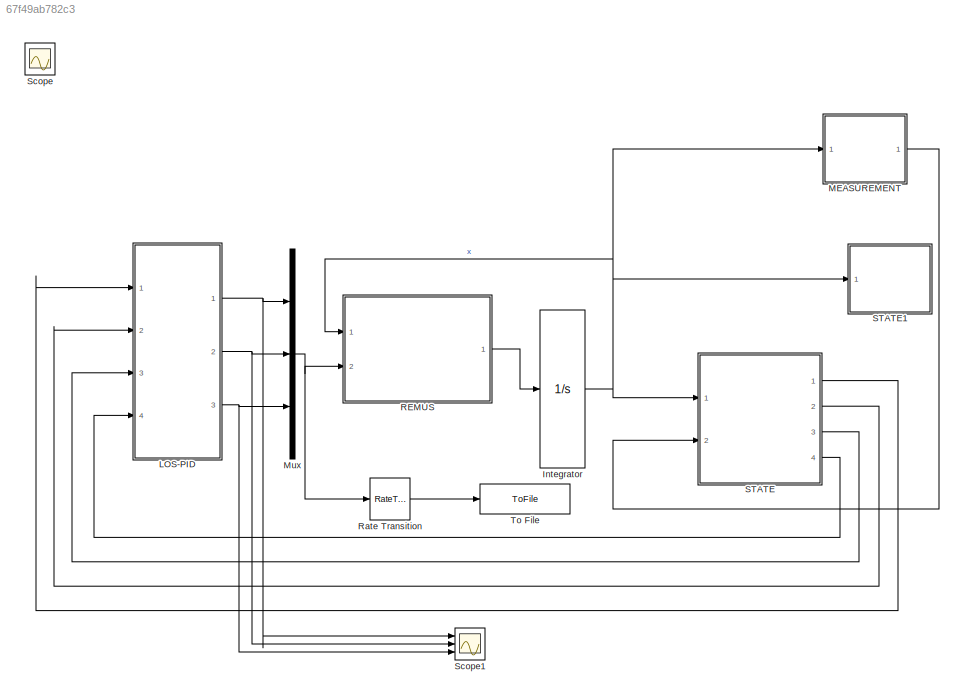
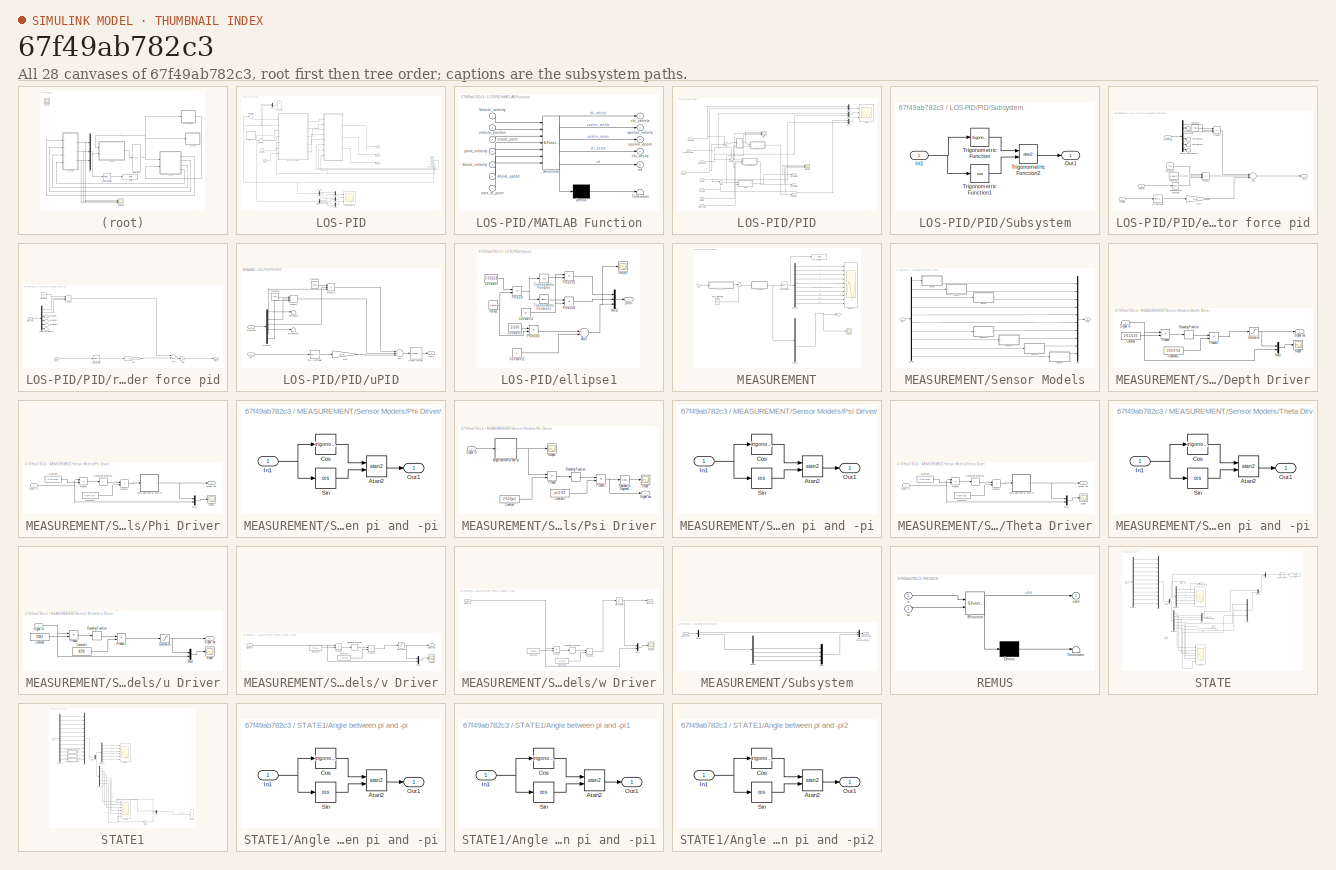
[diagram: thumbnail index - all 28 canvases of the model, root first then tree order]
MODEL slx_67f49ab782c3
KIND model
CONFIG AbsTol = auto
CONFIG EnableMultiTasking = on
CONFIG FixedStep = 0.01
CONFIG MaxStep = auto
CONFIG MinStep = auto
CONFIG RelTol = 1e-3
CONFIG SampleTimeConstraint = Unconstrained
CONFIG Solver = FixedStepAuto
CONFIG SolverName = FixedStepAuto
CONFIG StartTime = 0.0
CONFIG StopTime = 800
BLOCK [Integrator] Integrator
  ContinuousStateAttributes = 'position'
  InitialCondition = [0.5,0,0,0,0,0,60,3,0,0,0,3*pi/4]
  Ports = [1, 1]
BLOCK [SubSystem] LOS-PID
  Ports = [4, 3]
  RequestExecContextInheritance = off
BLOCK [Clock] LOS-PID/Clock
BLOCK [S-Function] LOS-PID/Combined
  CopyFcn = if exist('sfun3d','file'), sfun3d([],[],[],'CopyBlock'); end
  DeleteFcn = if exist('sfun3d','file'), sfun3d([],[],[],'DeleteBlock'); end
  EnableBusSupport = off
  FunctionName = sfun3d
  LoadFcn = if exist('sfun3d','file'), sfun3d([],[],[],'LoadBlock'); end
  NameChangeFcn = if exist('sfun3d','file'), sfun3d([],[],[],'NameChange'); end
  Parameters = ax,T,np,cp,gd,ls,mk
  Ports = [1]
  SFcnIsStateOwnerBlock = off
  SFunctionDeploymentMode = off
BLOCK [Constant] LOS-PID/Constant
BLOCK [Derivative] LOS-PID/Derivative
BLOCK [Derivative] LOS-PID/Derivative1
BLOCK [Outport] LOS-PID/Elevator
  IconDisplay = Port number
  Port = 2
BLOCK [Inport] LOS-PID/In1
  IconDisplay = Port number
BLOCK [Inport] LOS-PID/In2
  IconDisplay = Port number
  Port = 2
BLOCK [Inport] LOS-PID/In3
  IconDisplay = Port number
  Port = 3
BLOCK [Inport] LOS-PID/In4
  IconDisplay = Port number
  Port = 4
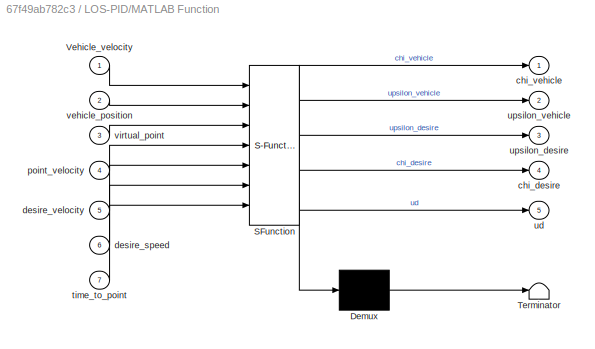
BLOCK [SubSystem] LOS-PID/MATLAB Function
  ErrorFcn = Stateflow.Translate.translate
  PermitHierarchicalResolution = ExplicitOnly
  Ports = [7, 5]
  RequestExecContextInheritance = off
  SFBlockType = MATLAB Function
  TreatAsAtomicUnit = on
BLOCK [Demux] LOS-PID/MATLAB Function/ Demux 
  Outputs = 1
  Ports = [1, 1]
BLOCK [S-Function] LOS-PID/MATLAB Function/ SFunction 
  EnableBusSupport = on
  FunctionName = sf_sfun
  PortCounts = [7 6]
  Ports = [7, 6]
  SFcnIsStateOwnerBlock = off
  SFunctionDeploymentMode = off
  Tag = Stateflow S-Function REMUS_CONTROL_helix 1
BLOCK [Terminator] LOS-PID/MATLAB Function/ Terminator 
BLOCK [Inport] LOS-PID/MATLAB Function/Vehicle_velocity
  IconDisplay = Port number
BLOCK [Outport] LOS-PID/MATLAB Function/chi_desire
  IconDisplay = Port number
  Port = 4
BLOCK [Outport] LOS-PID/MATLAB Function/chi_vehicle
  IconDisplay = Port number
BLOCK [Inport] LOS-PID/MATLAB Function/desire_speed
  IconDisplay = Port number
  Port = 6
BLOCK [Inport] LOS-PID/MATLAB Function/desire_velocity
  IconDisplay = Port number
  Port = 5
BLOCK [Inport] LOS-PID/MATLAB Function/point_velocity
  IconDisplay = Port number
  Port = 4
BLOCK [Inport] LOS-PID/MATLAB Function/time_to_point
  IconDisplay = Port number
  Port = 7
BLOCK [Outport] LOS-PID/MATLAB Function/ud
  IconDisplay = Port number
  Port = 5
BLOCK [Outport] LOS-PID/MATLAB Function/upsilon_desire
  IconDisplay = Port number
  Port = 3
BLOCK [Outport] LOS-PID/MATLAB Function/upsilon_vehicle
  IconDisplay = Port number
  Port = 2
BLOCK [Inport] LOS-PID/MATLAB Function/vehicle_position
  IconDisplay = Port number
  Port = 2
BLOCK [Inport] LOS-PID/MATLAB Function/virtual_point
  IconDisplay = Port number
  Port = 3
BLOCK [Mux] LOS-PID/Mux1
  DisplayOption = bar
  Inputs = 2
  Ports = [2, 1]
BLOCK [Mux] LOS-PID/Mux2
  DisplayOption = bar
  Inputs = 2
  Ports = [2, 1]
BLOCK [Mux] LOS-PID/Mux3
  DisplayOption = bar
  Inputs = 2
  Ports = [2, 1]
BLOCK [Mux] LOS-PID/Mux4
  DisplayOption = bar
  Inputs = 2
  Ports = [2, 1]
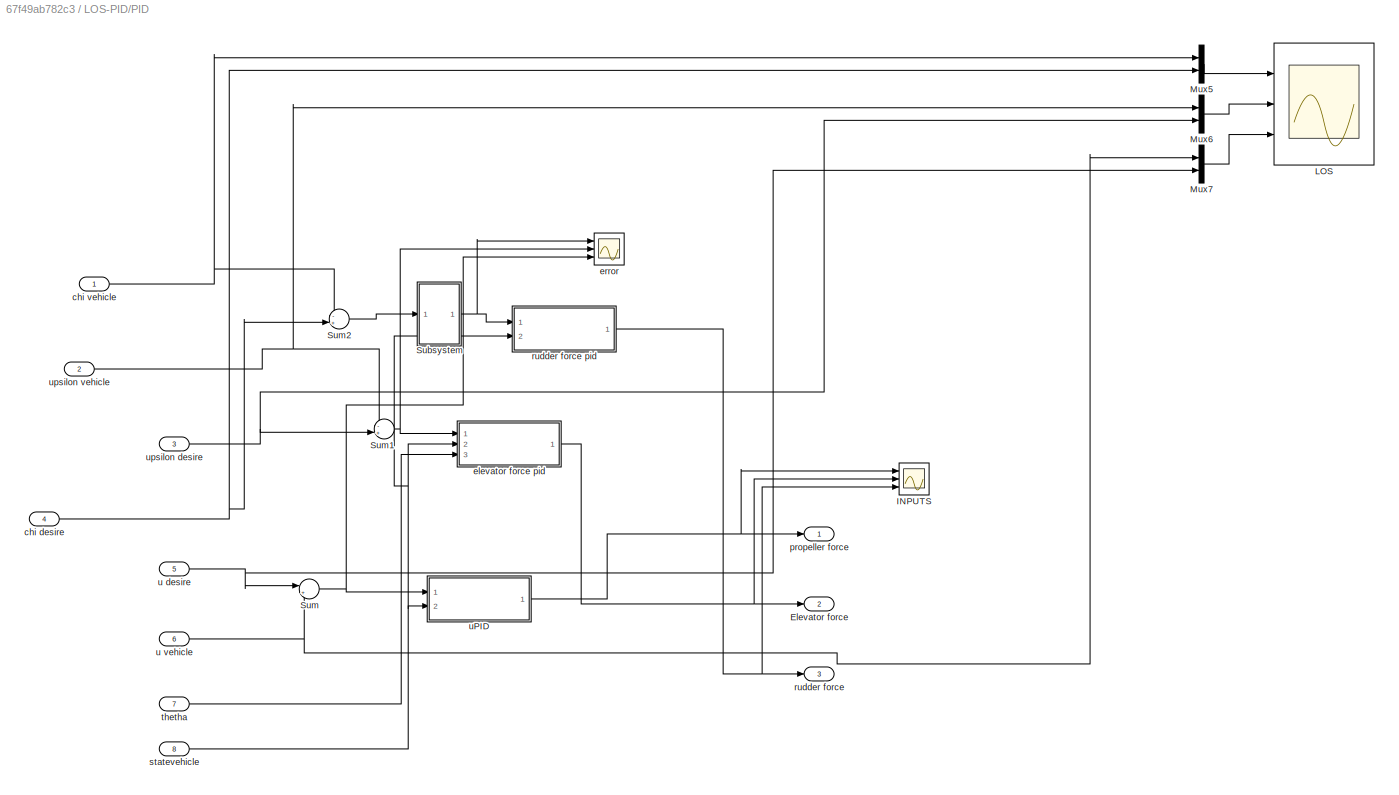
BLOCK [SubSystem] LOS-PID/PID
  Ports = [8, 3]
  RequestExecContextInheritance = off
BLOCK [Outport] LOS-PID/PID/Elevator force
  IconDisplay = Port number
  Port = 2
BLOCK [Scope] LOS-PID/PID/INPUTS
  Floating = off
  NumInputPorts = 3
  Ports = [3]
  ScopeSpecificationString = Simulink.scopes.TimeScopeBlockCfg('CurrentConfiguration', extmgr.ConfigurationSet(extmgr.Configuration('Core','General UI',true),extmgr.Configuration('Core','Source UI',true),extmgr.Configuration('Sources','WiredSimulink',true,'DataLoggingVariableName','ScopeData1'),extmgr.Configuration('Visuals','Time Domain',true,'SerializedDisplays',{struct('MinYLimReal','-3087.31124','MaxYLimReal','5482.42571'...<+2753ch>
BLOCK [Scope] LOS-PID/PID/LOS
  Floating = off
  NumInputPorts = 3
  Ports = [3]
  ScopeSpecificationString = Simulink.scopes.TimeScopeBlockCfg('CurrentConfiguration', extmgr.ConfigurationSet(extmgr.Configuration('Core','General UI',true),extmgr.Configuration('Core','Source UI',true),extmgr.Configuration('Sources','WiredSimulink',true,'DataLoggingVariableName','ScopeData4'),extmgr.Configuration('Visuals','Time Domain',true,'SerializedDisplays',{struct('MinYLimReal','-3.92684','MaxYLimReal','3.92693','YLab...<+3111ch>
BLOCK [Mux] LOS-PID/PID/Mux5
  DisplayOption = bar
  Inputs = 2
  Ports = [2, 1]
BLOCK [Mux] LOS-PID/PID/Mux6
  DisplayOption = bar
  Inputs = 2
  Ports = [2, 1]
BLOCK [Mux] LOS-PID/PID/Mux7
  DisplayOption = bar
  Inputs = 2
  Ports = [2, 1]
BLOCK [SubSystem] LOS-PID/PID/Subsystem
  Ports = [1, 1]
  RequestExecContextInheritance = off
BLOCK [Inport] LOS-PID/PID/Subsystem/In1
  IconDisplay = Port number
BLOCK [Outport] LOS-PID/PID/Subsystem/Out1
  IconDisplay = Port number
BLOCK [Trigonometry] LOS-PID/PID/Subsystem/Trigonometric Function
  Ports = [1, 1]
BLOCK [Trigonometry] LOS-PID/PID/Subsystem/Trigonometric Function1
  Operator = cos
  Ports = [1, 1]
BLOCK [Trigonometry] LOS-PID/PID/Subsystem/Trigonometric Function2
  Operator = atan2
  Ports = [2, 1]
BLOCK [Sum] LOS-PID/PID/Sum
  IconShape = round
  InputSameDT = off
  Inputs = |+-
  OutDataTypeStr = Inherit: Inherit via internal rule
  Ports = [2, 1]
  SaturateOnIntegerOverflow = off
BLOCK [Sum] LOS-PID/PID/Sum1
  IconShape = round
  InputSameDT = off
  Inputs = -+|
  OutDataTypeStr = Inherit: Inherit via internal rule
  Ports = [2, 1]
  SaturateOnIntegerOverflow = off
BLOCK [Sum] LOS-PID/PID/Sum2
  IconShape = round
  InputSameDT = off
  Inputs = -+|
  OutDataTypeStr = Inherit: Inherit via internal rule
  Ports = [2, 1]
  SaturateOnIntegerOverflow = off
BLOCK [Inport] LOS-PID/PID/chi desire
  IconDisplay = Port number
  Port = 4
BLOCK [Inport] LOS-PID/PID/chi vehicle
  IconDisplay = Port number
BLOCK [SubSystem] LOS-PID/PID/elevator force pid
  Ports = [3, 1]
  RequestExecContextInheritance = off
BLOCK [Sum] LOS-PID/PID/elevator force pid/Add
  InputSameDT = off
  Inputs = +++
  OutDataTypeStr = Inherit: Inherit via internal rule
  Ports = [3, 1]
  SaturateOnIntegerOverflow = off
BLOCK [Constant] LOS-PID/PID/elevator force pid/Constant
  Value = -34.57
BLOCK [Constant] LOS-PID/PID/elevator force pid/Constant1
  Value = 9.81
BLOCK [Constant] LOS-PID/PID/elevator force pid/Constant2
  Value = 1.96e-2
BLOCK [Demux] LOS-PID/PID/elevator force pid/Demux
  DisplayOption = bar
  Outputs = 6
  Ports = [1, 6]
BLOCK [Reference] LOS-PID/PID/elevator force pid/PID Controller  REF=simulink/Continuous/PID Controller
  Ports = [1, 1]
  SourceBlock = simulink/Continuous/PID Controller
  SourceProductBaseCode = SL
  SourceProductName = Simulink
  SourceType = PID 1dof
BLOCK [Product] LOS-PID/PID/elevator force pid/Product
  InputSameDT = off
  Inputs = 3
  OutDataTypeStr = Inherit: Inherit via internal rule
  Ports = [3, 1]
  RndMeth = Floor
  SaturateOnIntegerOverflow = off
BLOCK [Product] LOS-PID/PID/elevator force pid/Product1
  InputSameDT = off
  Inputs = 3
  OutDataTypeStr = Inherit: Inherit via internal rule
  Ports = [3, 1]
  RndMeth = Floor
  SaturateOnIntegerOverflow = off
BLOCK [Terminator] LOS-PID/PID/elevator force pid/Terminator
BLOCK [Terminator] LOS-PID/PID/elevator force pid/Terminator1
BLOCK [Terminator] LOS-PID/PID/elevator force pid/Terminator2
BLOCK [Terminator] LOS-PID/PID/elevator force pid/Terminator3
BLOCK [Trigonometry] LOS-PID/PID/elevator force pid/Trigonometric Function
  Ports = [1, 1]
BLOCK [Inport] LOS-PID/PID/elevator force pid/eupsilon
  IconDisplay = Port number
BLOCK [Gain] LOS-PID/PID/elevator force pid/m11
  Gain = 8.33
  OutDataTypeStr = Inherit: Inherit via internal rule
  ParamDataTypeStr = Inherit: Inherit via internal rule
  SaturateOnIntegerOverflow = off
BLOCK [Inport] LOS-PID/PID/elevator force pid/state-dot
  IconDisplay = Port number
  Port = 2
BLOCK [Outport] LOS-PID/PID/elevator force pid/tao_q
  IconDisplay = Port number
  InitialOutput = 0
BLOCK [Inport] LOS-PID/PID/elevator force pid/thetha
  IconDisplay = Port number
  Port = 3
BLOCK [Scope] LOS-PID/PID/error
  Floating = off
  NumInputPorts = 3
  Ports = [3]
  ScopeSpecificationString = Simulink.scopes.TimeScopeBlockCfg('CurrentConfiguration', extmgr.ConfigurationSet(extmgr.Configuration('Core','General UI',true),extmgr.Configuration('Core','Source UI',true),extmgr.Configuration('Sources','WiredSimulink',true,'DataLoggingVariableName','ScopeData5'),extmgr.Configuration('Visuals','Time Domain',true,'SerializedDisplays',{struct('MinYLimReal','-7.83365','MaxYLimReal','7.84483','YLab...<+3087ch>
BLOCK [Outport] LOS-PID/PID/propeller force
  IconDisplay = Port number
BLOCK [Outport] LOS-PID/PID/rudder force
  IconDisplay = Port number
  Port = 3
BLOCK [SubSystem] LOS-PID/PID/rudder force pid
  Ports = [2, 1]
  RequestExecContextInheritance = off
BLOCK [Sum] LOS-PID/PID/rudder force pid/Add
  InputSameDT = off
  OutDataTypeStr = Inherit: Inherit via internal rule
  Ports = [2, 1]
  SaturateOnIntegerOverflow = off
BLOCK [Constant] LOS-PID/PID/rudder force pid/Constant
  Value = 34.57
BLOCK [Demux] LOS-PID/PID/rudder force pid/Demux
  DisplayOption = bar
  Outputs = 6
  Ports = [1, 6]
BLOCK [Gain] LOS-PID/PID/rudder force pid/Gain
  OutDataTypeStr = Inherit: Inherit via internal rule
  ParamDataTypeStr = Inherit: Inherit via internal rule
  SaturateOnIntegerOverflow = off
BLOCK [Reference] LOS-PID/PID/rudder force pid/PID Controller  REF=simulink/Continuous/PID Controller
  Ports = [1, 1]
  SourceBlock = simulink/Continuous/PID Controller
  SourceProductBaseCode = SL
  SourceProductName = Simulink
  SourceType = PID 1dof
BLOCK [Product] LOS-PID/PID/rudder force pid/Product
  InputSameDT = off
  Inputs = 3
  OutDataTypeStr = Inherit: Inherit via internal rule
  Ports = [3, 1]
  RndMeth = Floor
  SaturateOnIntegerOverflow = off
BLOCK [Terminator] LOS-PID/PID/rudder force pid/Terminator
BLOCK [Terminator] LOS-PID/PID/rudder force pid/Terminator1
BLOCK [Terminator] LOS-PID/PID/rudder force pid/Terminator2
BLOCK [Terminator] LOS-PID/PID/rudder force pid/Terminator3
BLOCK [Inport] LOS-PID/PID/rudder force pid/echi
  IconDisplay = Port number
BLOCK [Gain] LOS-PID/PID/rudder force pid/m66
  Gain = 8.33
  OutDataTypeStr = Inherit: Inherit via internal rule
  ParamDataTypeStr = Inherit: Inherit via internal rule
  SaturateOnIntegerOverflow = off
BLOCK [Inport] LOS-PID/PID/rudder force pid/state-dot
  IconDisplay = Port number
  Port = 2
BLOCK [Outport] LOS-PID/PID/rudder force pid/tao_q
  IconDisplay = Port number
  InitialOutput = 0
BLOCK [Inport] LOS-PID/PID/statevehicle
  IconDisplay = Port number
  Port = 8
BLOCK [Inport] LOS-PID/PID/thetha
  IconDisplay = Port number
  Port = 7
BLOCK [Inport] LOS-PID/PID/u desire
  IconDisplay = Port number
  Port = 5
BLOCK [Inport] LOS-PID/PID/u vehicle
  IconDisplay = Port number
  Port = 6
BLOCK [SubSystem] LOS-PID/PID/uPID
  Ports = [2, 1]
  RequestExecContextInheritance = off
BLOCK [Sum] LOS-PID/PID/uPID/Add
  InputSameDT = off
  Inputs = +++
  OutDataTypeStr = Inherit: Inherit via internal rule
  Ports = [3, 1]
  SaturateOnIntegerOverflow = off
BLOCK [Constant] LOS-PID/PID/uPID/Constant
  Value = -65.97
BLOCK [Constant] LOS-PID/PID/uPID/Constant1
  Value = 65.97
BLOCK [Demux] LOS-PID/PID/uPID/Demux
  DisplayOption = bar
  Outputs = 6
  Ports = [1, 6]
BLOCK [Reference] LOS-PID/PID/uPID/Moving Average  REF=dspstat3/Moving
Average
  Ports = [1, 1]
  SourceBlock = dspstat3/Moving\nAverage
  SourceProductBaseCode = DS
  SourceProductName = DSP System Toolbox
  SourceType = dsp.simulink.MovingAverage
BLOCK [Reference] LOS-PID/PID/uPID/PID Controller  REF=simulink/Continuous/PID Controller
  Ports = [1, 1]
  SourceBlock = simulink/Continuous/PID Controller
  SourceProductBaseCode = SL
  SourceProductName = Simulink
  SourceType = PID 1dof
BLOCK [Product] LOS-PID/PID/uPID/Product
  InputSameDT = off
  Inputs = 3
  OutDataTypeStr = Inherit: Inherit via internal rule
  Ports = [3, 1]
  RndMeth = Floor
  SaturateOnIntegerOverflow = off
BLOCK [Product] LOS-PID/PID/uPID/Product1
  InputSameDT = off
  Inputs = 3
  OutDataTypeStr = Inherit: Inherit via internal rule
  Ports = [3, 1]
  RndMeth = Floor
  SaturateOnIntegerOverflow = off
BLOCK [Terminator] LOS-PID/PID/uPID/Terminator
BLOCK [Terminator] LOS-PID/PID/uPID/Terminator1
BLOCK [Inport] LOS-PID/PID/uPID/eu
  IconDisplay = Port number
BLOCK [Gain] LOS-PID/PID/uPID/m11
  Gain = 31.40
  OutDataTypeStr = Inherit: Inherit via internal rule
  ParamDataTypeStr = Inherit: Inherit via internal rule
  SaturateOnIntegerOverflow = off
BLOCK [Inport] LOS-PID/PID/uPID/state-dot
  IconDisplay = Port number
  Port = 2
BLOCK [Outport] LOS-PID/PID/uPID/tao_u
  IconDisplay = Port number
  InitialOutput = 0
BLOCK [Inport] LOS-PID/PID/upsilon desire
  IconDisplay = Port number
  Port = 3
BLOCK [Inport] LOS-PID/PID/upsilon vehicle
  IconDisplay = Port number
  Port = 2
BLOCK [Demux] LOS-PID/Particle
  DisplayOption = bar
  Outputs = 3
  Ports = [1, 3]
BLOCK [Scope] LOS-PID/Positiondiference
  Floating = off
  NumInputPorts = 3
  Ports = [3]
  ScopeSpecificationString = Simulink.scopes.TimeScopeBlockCfg('CurrentConfiguration', extmgr.ConfigurationSet(extmgr.Configuration('Core','General UI',true),extmgr.Configuration('Core','Source UI',true),extmgr.Configuration('Sources','WiredSimulink',true,'DataLoggingVariableName','ScopeData3'),extmgr.Configuration('Visuals','Time Domain',true,'SerializedDisplays',{struct('MinYLimReal','-77.13079','MaxYLimReal','77.17679','YL...<+3156ch>
BLOCK [Outport] LOS-PID/RPM
  IconDisplay = Port number
BLOCK [Outport] LOS-PID/Rudder
  IconDisplay = Port number
  Port = 3
BLOCK [Demux] LOS-PID/Vehicle
  DisplayOption = bar
  Outputs = 3
  Ports = [1, 3]
BLOCK [SubSystem] LOS-PID/ellipse1
  Ports = [0, 1]
  RequestExecContextInheritance = off
BLOCK [Sum] LOS-PID/ellipse1/Add
  InputSameDT = off
  OutDataTypeStr = Inherit: Inherit via internal rule
  Ports = [2, 1]
  SaturateOnIntegerOverflow = off
BLOCK [Constant] LOS-PID/ellipse1/Constant
  Value = 0.02618
BLOCK [Constant] LOS-PID/ellipse1/Constant1
  Value = 60
BLOCK [Constant] LOS-PID/ellipse1/Constant2
  Value = 2
BLOCK [Constant] LOS-PID/ellipse1/Constant3
  Value = 2/200
BLOCK [Mux] LOS-PID/ellipse1/Mux2
  DisplayOption = bar
  Inputs = 3
  Ports = [3, 1]
BLOCK [Product] LOS-PID/ellipse1/Product
  InputSameDT = off
  OutDataTypeStr = Inherit: Inherit via internal rule
  Ports = [2, 1]
  RndMeth = Floor
  SaturateOnIntegerOverflow = off
BLOCK [Product] LOS-PID/ellipse1/Product1
  InputSameDT = off
  OutDataTypeStr = Inherit: Inherit via internal rule
  Ports = [2, 1]
  RndMeth = Floor
  SaturateOnIntegerOverflow = off
BLOCK [Product] LOS-PID/ellipse1/Product2
  InputSameDT = off
  OutDataTypeStr = Inherit: Inherit via internal rule
  Ports = [2, 1]
  RndMeth = Floor
  SaturateOnIntegerOverflow = off
BLOCK [Product] LOS-PID/ellipse1/Product3
  InputSameDT = off
  OutDataTypeStr = Inherit: Inherit via internal rule
  Ports = [2, 1]
  RndMeth = Floor
  SaturateOnIntegerOverflow = off
BLOCK [Reference] LOS-PID/ellipse1/Ramp  REF=simulink/Sources/Ramp
  Ports = [0, 1]
  SourceBlock = simulink/Sources/Ramp
  SourceProductBaseCode = SL
  SourceProductName = Simulink
  SourceType = Ramp
BLOCK [Scope] LOS-PID/ellipse1/Scope
  Floating = off
  NumInputPorts = 1
  Ports = [1]
  ScopeSpecificationString = Simulink.scopes.TimeScopeBlockCfg('CurrentConfiguration', extmgr.ConfigurationSet(extmgr.Configuration('Core','General UI',true),extmgr.Configuration('Core','Source UI',true),extmgr.Configuration('Sources','WiredSimulink',true,'DataLoggingVariableName','ScopeData1'),extmgr.Configuration('Visuals','Time Domain',true,'SerializedDisplays',{struct('MinYLimReal','1.91882','MaxYLimReal','2.73063','YLabe...<+1412ch>
BLOCK [Trigonometry] LOS-PID/ellipse1/Trigonometric Function
  Operator = cos
  Ports = [1, 1]
BLOCK [Trigonometry] LOS-PID/ellipse1/Trigonometric Function1
  Ports = [1, 1]
BLOCK [Outport] LOS-PID/ellipse1/path
  IconDisplay = Port number
BLOCK [SubSystem] MEASUREMENT
  Ports = [1, 1]
  RequestExecContextInheritance = off
BLOCK [Reference] MEASUREMENT/Band-Limited White Noise  REF=simulink/Sources/Band-Limited
White Noise
  Ports = [0, 1]
  SourceBlock = simulink/Sources/Band-Limited\nWhite Noise
  SourceProductBaseCode = SL
  SourceProductName = Simulink
  SourceType = Band-Limited White Noise.
BLOCK [Demux] MEASUREMENT/Demux1
  DisplayOption = bar
  Outputs = 10
  Ports = [1, 10]
BLOCK [Demux] MEASUREMENT/Demux3
  DisplayOption = bar
  Outputs = 10
  Ports = [1, 10]
BLOCK [Inport] MEASUREMENT/In1
  IconDisplay = Port number
BLOCK [RateTransition] MEASUREMENT/Rate Transition6
  OutPortSampleTime = 0.01
BLOCK [Scope] MEASUREMENT/Scope
  Floating = off
  NumInputPorts = 1
  Ports = [1]
  ScopeSpecificationString = Simulink.scopes.TimeScopeBlockCfg('CurrentConfiguration', extmgr.ConfigurationSet(extmgr.Configuration('Core','General UI',true),extmgr.Configuration('Core','Source UI',true),extmgr.Configuration('Sources','WiredSimulink',true,'DataLoggingVariableName','ScopeData1'),extmgr.Configuration('Visuals','Time Domain',true,'SerializedDisplays',{struct('MinYLimReal','-1.13831','MaxYLimReal','10.24475','YLa...<+1396ch>
BLOCK [SubSystem] MEASUREMENT/Sensor Models
  Ports = [1, 1]
  RequestExecContextInheritance = off
BLOCK [Demux] MEASUREMENT/Sensor Models/Demux
  DisplayOption = bar
  Outputs = 10
  Ports = [1, 10]
BLOCK [SubSystem] MEASUREMENT/Sensor Models/Depth Driver
  Ports = [1, 1]
  RequestExecContextInheritance = off
BLOCK [Constant] MEASUREMENT/Sensor Models/Depth Driver/Constant
  Value = 2^14/100
BLOCK [Constant] MEASUREMENT/Sensor Models/Depth Driver/Constant1
  Value = 100/2^14
BLOCK [Mux] MEASUREMENT/Sensor Models/Depth Driver/Mux1
  DisplayOption = bar
  Inputs = 2
  Ports = [2, 1]
BLOCK [Product] MEASUREMENT/Sensor Models/Depth Driver/Product
  InputSameDT = off
  OutDataTypeStr = Inherit: Inherit via internal rule
  Ports = [2, 1]
  RndMeth = Floor
  SaturateOnIntegerOverflow = off
BLOCK [Product] MEASUREMENT/Sensor Models/Depth Driver/Product1
  InputSameDT = off
  OutDataTypeStr = Inherit: Inherit via internal rule
  Ports = [2, 1]
  RndMeth = Floor
  SaturateOnIntegerOverflow = off
BLOCK [Rounding] MEASUREMENT/Sensor Models/Depth Driver/Rounding Function
  Operator = round
BLOCK [Saturate] MEASUREMENT/Sensor Models/Depth Driver/Saturation
  InputPortMap = u0
  LowerLimit = -100
  Ports = [1, 1]
  UpperLimit = 100
BLOCK [Scope] MEASUREMENT/Sensor Models/Depth Driver/Scope
  Floating = off
  NumInputPorts = 1
  Ports = [1]
  ScopeSpecificationString = Simulink.scopes.TimeScopeBlockCfg('CurrentConfiguration', extmgr.ConfigurationSet(extmgr.Configuration('Core','General UI',true),extmgr.Configuration('Core','Source UI',true),extmgr.Configuration('Sources','WiredSimulink',true,'DataLoggingVariableName','ScopeData1'),extmgr.Configuration('Visuals','Time Domain',true,'SerializedDisplays',{struct('MinYLimReal','-4.86755','MaxYLimReal','41.91589','YLa...<+1509ch>
BLOCK [Inport] MEASUREMENT/Sensor Models/Depth Driver/Signal In
  IconDisplay = Port number
BLOCK [Outport] MEASUREMENT/Sensor Models/Depth Driver/Signal out
  IconDisplay = Port number
BLOCK [Inport] MEASUREMENT/Sensor Models/In1
  IconDisplay = Port number
BLOCK [Mux] MEASUREMENT/Sensor Models/Mux
  DisplayOption = bar
  Inputs = 10
  Ports = [10, 1]
BLOCK [Outport] MEASUREMENT/Sensor Models/Out1
  IconDisplay = Port number
BLOCK [SubSystem] MEASUREMENT/Sensor Models/Phi Driver
  Ports = [1, 1]
  RequestExecContextInheritance = off
BLOCK [SubSystem] MEASUREMENT/Sensor Models/Phi Driver/Angle between pi and -pi
  Ports = [1, 1]
  RequestExecContextInheritance = off
BLOCK [Trigonometry] MEASUREMENT/Sensor Models/Phi Driver/Angle between pi and -pi/Atan2
  Operator = atan2
  Ports = [2, 1]
BLOCK [Trigonometry] MEASUREMENT/Sensor Models/Phi Driver/Angle between pi and -pi/Cos
  Ports = [1, 1]
BLOCK [Inport] MEASUREMENT/Sensor Models/Phi Driver/Angle between pi and -pi/In1
  IconDisplay = Port number
BLOCK [Outport] MEASUREMENT/Sensor Models/Phi Driver/Angle between pi and -pi/Out1
  IconDisplay = Port number
BLOCK [Trigonometry] MEASUREMENT/Sensor Models/Phi Driver/Angle between pi and -pi/Sin
  Operator = cos
  Ports = [1, 1]
BLOCK [Constant] MEASUREMENT/Sensor Models/Phi Driver/Constant
  Value = 2^14/(2*pi)
BLOCK [Constant] MEASUREMENT/Sensor Models/Phi Driver/Constant1
  Value = 2*pi/2^14
BLOCK [Mux] MEASUREMENT/Sensor Models/Phi Driver/Mux1
  DisplayOption = bar
  Inputs = 2
  Ports = [2, 1]
BLOCK [Product] MEASUREMENT/Sensor Models/Phi Driver/Product
  InputSameDT = off
  OutDataTypeStr = Inherit: Inherit via internal rule
  Ports = [2, 1]
  RndMeth = Floor
  SaturateOnIntegerOverflow = off
BLOCK [Product] MEASUREMENT/Sensor Models/Phi Driver/Product1
  InputSameDT = off
  OutDataTypeStr = Inherit: Inherit via internal rule
  Ports = [2, 1]
  RndMeth = Floor
  SaturateOnIntegerOverflow = off
BLOCK [Rounding] MEASUREMENT/Sensor Models/Phi Driver/Rounding Function
  Operator = round
BLOCK [Scope] MEASUREMENT/Sensor Models/Phi Driver/Scope
  Floating = off
  NumInputPorts = 1
  Ports = [1]
  ScopeSpecificationString = Simulink.scopes.TimeScopeBlockCfg('CurrentConfiguration', extmgr.ConfigurationSet(extmgr.Configuration('Core','General UI',true),extmgr.Configuration('Core','Source UI',true),extmgr.Configuration('Sources','WiredSimulink',true,'DataLoggingVariableName','ScopeData1'),extmgr.Configuration('Visuals','Time Domain',true,'SerializedDisplays',{struct('MinYLimReal','-0.13774','MaxYLimReal','0.01635','YLab...<+1467ch>
BLOCK [Inport] MEASUREMENT/Sensor Models/Phi Driver/Signal In
  IconDisplay = Port number
BLOCK [Outport] MEASUREMENT/Sensor Models/Phi Driver/Signal out
  IconDisplay = Port number
BLOCK [SubSystem] MEASUREMENT/Sensor Models/Psi Driver
  Ports = [1, 1]
  RequestExecContextInheritance = off
BLOCK [SubSystem] MEASUREMENT/Sensor Models/Psi Driver/Angle between pi and -pi
  Ports = [1, 1]
  RequestExecContextInheritance = off
BLOCK [Trigonometry] MEASUREMENT/Sensor Models/Psi Driver/Angle between pi and -pi/Atan2
  Operator = atan2
  Ports = [2, 1]
BLOCK [Trigonometry] MEASUREMENT/Sensor Models/Psi Driver/Angle between pi and -pi/Cos
  Ports = [1, 1]
BLOCK [Inport] MEASUREMENT/Sensor Models/Psi Driver/Angle between pi and -pi/In1
  IconDisplay = Port number
BLOCK [Outport] MEASUREMENT/Sensor Models/Psi Driver/Angle between pi and -pi/Out1
  IconDisplay = Port number
BLOCK [Trigonometry] MEASUREMENT/Sensor Models/Psi Driver/Angle between pi and -pi/Sin
  Operator = cos
  Ports = [1, 1]
BLOCK [Constant] MEASUREMENT/Sensor Models/Psi Driver/Constant
  Value = 2^12/(pi)
BLOCK [Constant] MEASUREMENT/Sensor Models/Psi Driver/Constant1
  Value = pi/2^12
BLOCK [Product] MEASUREMENT/Sensor Models/Psi Driver/Product
  InputSameDT = off
  OutDataTypeStr = Inherit: Inherit via internal rule
  Ports = [2, 1]
  RndMeth = Floor
  SaturateOnIntegerOverflow = off
BLOCK [Product] MEASUREMENT/Sensor Models/Psi Driver/Product1
  InputSameDT = off
  OutDataTypeStr = Inherit: Inherit via internal rule
  Ports = [2, 1]
  RndMeth = Floor
  SaturateOnIntegerOverflow = off
BLOCK [Reference] MEASUREMENT/Sensor Models/Psi Driver/Radians to Degrees1  REF=simulink_extras/Transformations/Radians
to Degrees
  Ports = [1, 1]
  SourceBlock = simulink_extras/Transformations/Radians\nto Degrees
  SourceProductBaseCode = SL
  SourceProductName = Simulink
  SourceType = RadiansToDegrees
BLOCK [Rounding] MEASUREMENT/Sensor Models/Psi Driver/Rounding Function
  Operator = round
BLOCK [Scope] MEASUREMENT/Sensor Models/Psi Driver/Scope
  Floating = off
  NumInputPorts = 1
  Ports = [1]
  ScopeSpecificationString = Simulink.scopes.TimeScopeBlockCfg('CurrentConfiguration', extmgr.ConfigurationSet(extmgr.Configuration('Core','General UI',true),extmgr.Configuration('Core','Source UI',true),extmgr.Configuration('Sources','WiredSimulink',true,'DataLoggingVariableName','ScopeData1'),extmgr.Configuration('Visuals','Time Domain',true,'SerializedDisplays',{struct('MinYLimReal','-225.00000','MaxYLimReal','225.00000','...<+1491ch>
BLOCK [Scope] MEASUREMENT/Sensor Models/Psi Driver/Scope1
  Floating = off
  NumInputPorts = 1
  Ports = [1]
  ScopeSpecificationString = Simulink.scopes.TimeScopeBlockCfg('CurrentConfiguration', extmgr.ConfigurationSet(extmgr.Configuration('Core','General UI',true),extmgr.Configuration('Core','Source UI',true),extmgr.Configuration('Sources','WiredSimulink',true,'DataLoggingVariableName','ScopeData2'),extmgr.Configuration('Visuals','Time Domain',true,'SerializedDisplays',{struct('MinYLimReal','-105.12633','MaxYLimReal','26.68192','Y...<+1494ch>
BLOCK [Inport] MEASUREMENT/Sensor Models/Psi Driver/Signal In
  IconDisplay = Port number
BLOCK [Outport] MEASUREMENT/Sensor Models/Psi Driver/Signal out
  IconDisplay = Port number
BLOCK [SubSystem] MEASUREMENT/Sensor Models/Theta Driver
  Ports = [1, 1]
  RequestExecContextInheritance = off
BLOCK [SubSystem] MEASUREMENT/Sensor Models/Theta Driver/Angle between pi and -pi
  Ports = [1, 1]
  RequestExecContextInheritance = off
BLOCK [Trigonometry] MEASUREMENT/Sensor Models/Theta Driver/Angle between pi and -pi/Atan2
  Operator = atan2
  Ports = [2, 1]
BLOCK [Trigonometry] MEASUREMENT/Sensor Models/Theta Driver/Angle between pi and -pi/Cos
  Ports = [1, 1]
BLOCK [Inport] MEASUREMENT/Sensor Models/Theta Driver/Angle between pi and -pi/In1
  IconDisplay = Port number
BLOCK [Outport] MEASUREMENT/Sensor Models/Theta Driver/Angle between pi and -pi/Out1
  IconDisplay = Port number
BLOCK [Trigonometry] MEASUREMENT/Sensor Models/Theta Driver/Angle between pi and -pi/Sin
  Operator = cos
  Ports = [1, 1]
BLOCK [Constant] MEASUREMENT/Sensor Models/Theta Driver/Constant
  Value = 2^12/(2*pi)
BLOCK [Constant] MEASUREMENT/Sensor Models/Theta Driver/Constant1
  Value = 2*pi/2^12
BLOCK [Mux] MEASUREMENT/Sensor Models/Theta Driver/Mux1
  DisplayOption = bar
  Inputs = 2
  Ports = [2, 1]
BLOCK [Product] MEASUREMENT/Sensor Models/Theta Driver/Product
  InputSameDT = off
  OutDataTypeStr = Inherit: Inherit via internal rule
  Ports = [2, 1]
  RndMeth = Floor
  SaturateOnIntegerOverflow = off
BLOCK [Product] MEASUREMENT/Sensor Models/Theta Driver/Product1
  InputSameDT = off
  OutDataTypeStr = Inherit: Inherit via internal rule
  Ports = [2, 1]
  RndMeth = Floor
  SaturateOnIntegerOverflow = off
BLOCK [Rounding] MEASUREMENT/Sensor Models/Theta Driver/Rounding Function
  Operator = round
BLOCK [Scope] MEASUREMENT/Sensor Models/Theta Driver/Scope
  Floating = off
  NumInputPorts = 1
  Ports = [1]
  ScopeSpecificationString = Simulink.scopes.TimeScopeBlockCfg('CurrentConfiguration', extmgr.ConfigurationSet(extmgr.Configuration('Core','General UI',true),extmgr.Configuration('Core','Source UI',true),extmgr.Configuration('Sources','WiredSimulink',true,'DataLoggingVariableName','ScopeData1'),extmgr.Configuration('Visuals','Time Domain',true,'SerializedDisplays',{struct('MinYLimReal','-0.37392','MaxYLimReal','0.41868','YLab...<+1494ch>
BLOCK [Inport] MEASUREMENT/Sensor Models/Theta Driver/Signal In
  IconDisplay = Port number
BLOCK [Outport] MEASUREMENT/Sensor Models/Theta Driver/Signal out
  IconDisplay = Port number
BLOCK [SubSystem] MEASUREMENT/Sensor Models/u Driver
  Ports = [1, 1]
  RequestExecContextInheritance = off
BLOCK [Constant] MEASUREMENT/Sensor Models/u Driver/Constant
  Value = 2^12/4
BLOCK [Constant] MEASUREMENT/Sensor Models/u Driver/Constant1
  Value = 4/2^12
BLOCK [Mux] MEASUREMENT/Sensor Models/u Driver/Mux1
  DisplayOption = bar
  Inputs = 2
  Ports = [2, 1]
BLOCK [Product] MEASUREMENT/Sensor Models/u Driver/Product
  InputSameDT = off
  OutDataTypeStr = Inherit: Inherit via internal rule
  Ports = [2, 1]
  RndMeth = Floor
  SaturateOnIntegerOverflow = off
BLOCK [Product] MEASUREMENT/Sensor Models/u Driver/Product1
  InputSameDT = off
  OutDataTypeStr = Inherit: Inherit via internal rule
  Ports = [2, 1]
  RndMeth = Floor
  SaturateOnIntegerOverflow = off
BLOCK [Rounding] MEASUREMENT/Sensor Models/u Driver/Rounding Function
  Operator = round
BLOCK [Saturate] MEASUREMENT/Sensor Models/u Driver/Saturation
  InputPortMap = u0
  LowerLimit = -1
  Ports = [1, 1]
  UpperLimit = 3
BLOCK [Scope] MEASUREMENT/Sensor Models/u Driver/Scope
  Floating = off
  NumInputPorts = 1
  Ports = [1]
  ScopeSpecificationString = Simulink.scopes.TimeScopeBlockCfg('CurrentConfiguration', extmgr.ConfigurationSet(extmgr.Configuration('Core','General UI',true),extmgr.Configuration('Core','Source UI',true),extmgr.Configuration('Sources','WiredSimulink',true,'DataLoggingVariableName','ScopeData1'),extmgr.Configuration('Visuals','Time Domain',true,'SerializedDisplays',{struct('MinYLimReal','-0.18896','MaxYLimReal','1.68115','YLab...<+1480ch>
BLOCK [Inport] MEASUREMENT/Sensor Models/u Driver/Signal In
  IconDisplay = Port number
BLOCK [Outport] MEASUREMENT/Sensor Models/u Driver/Signal out
  IconDisplay = Port number
BLOCK [SubSystem] MEASUREMENT/Sensor Models/v Driver
  Ports = [1, 1]
  RequestExecContextInheritance = off
BLOCK [Constant] MEASUREMENT/Sensor Models/v Driver/Constant
  Value = 2^12/4
BLOCK [Constant] MEASUREMENT/Sensor Models/v Driver/Constant1
  Value = 4/2^12
BLOCK [Mux] MEASUREMENT/Sensor Models/v Driver/Mux1
  DisplayOption = bar
  Inputs = 2
  Ports = [2, 1]
BLOCK [Product] MEASUREMENT/Sensor Models/v Driver/Product
  InputSameDT = off
  OutDataTypeStr = Inherit: Inherit via internal rule
  Ports = [2, 1]
  RndMeth = Floor
  SaturateOnIntegerOverflow = off
BLOCK [Product] MEASUREMENT/Sensor Models/v Driver/Product1
  InputSameDT = off
  OutDataTypeStr = Inherit: Inherit via internal rule
  Ports = [2, 1]
  RndMeth = Floor
  SaturateOnIntegerOverflow = off
BLOCK [Rounding] MEASUREMENT/Sensor Models/v Driver/Rounding Function
  Operator = round
BLOCK [Saturate] MEASUREMENT/Sensor Models/v Driver/Saturation
  InputPortMap = u0
  LowerLimit = -1
  Ports = [1, 1]
  UpperLimit = 3
BLOCK [Scope] MEASUREMENT/Sensor Models/v Driver/Scope
  Floating = off
  NumInputPorts = 1
  Ports = [1]
  ScopeSpecificationString = Simulink.scopes.TimeScopeBlockCfg('CurrentConfiguration', extmgr.ConfigurationSet(extmgr.Configuration('Core','General UI',true),extmgr.Configuration('Core','Source UI',true),extmgr.Configuration('Sources','WiredSimulink',true,'DataLoggingVariableName','ScopeData1'),extmgr.Configuration('Visuals','Time Domain',true,'SerializedDisplays',{struct('MinYLimReal','-0.08301','MaxYLimReal','0.08301','YLab...<+1480ch>
BLOCK [Inport] MEASUREMENT/Sensor Models/v Driver/Signal In
  IconDisplay = Port number
BLOCK [Outport] MEASUREMENT/Sensor Models/v Driver/Signal out
  IconDisplay = Port number
BLOCK [SubSystem] MEASUREMENT/Sensor Models/w Driver
  Ports = [1, 1]
  RequestExecContextInheritance = off
BLOCK [Constant] MEASUREMENT/Sensor Models/w Driver/Constant
  Value = 2^12/4
BLOCK [Constant] MEASUREMENT/Sensor Models/w Driver/Constant1
  Value = 4/2^12
BLOCK [Mux] MEASUREMENT/Sensor Models/w Driver/Mux1
  DisplayOption = bar
  Inputs = 2
  Ports = [2, 1]
BLOCK [Product] MEASUREMENT/Sensor Models/w Driver/Product
  InputSameDT = off
  OutDataTypeStr = Inherit: Inherit via internal rule
  Ports = [2, 1]
  RndMeth = Floor
  SaturateOnIntegerOverflow = off
BLOCK [Product] MEASUREMENT/Sensor Models/w Driver/Product1
  InputSameDT = off
  OutDataTypeStr = Inherit: Inherit via internal rule
  Ports = [2, 1]
  RndMeth = Floor
  SaturateOnIntegerOverflow = off
BLOCK [Rounding] MEASUREMENT/Sensor Models/w Driver/Rounding Function
  Operator = round
BLOCK [Saturate] MEASUREMENT/Sensor Models/w Driver/Saturation
  InputPortMap = u0
  LowerLimit = -1
  Ports = [1, 1]
  UpperLimit = 3
BLOCK [Scope] MEASUREMENT/Sensor Models/w Driver/Scope
  Floating = off
  NumInputPorts = 1
  Ports = [1]
  ScopeSpecificationString = Simulink.scopes.TimeScopeBlockCfg('CurrentConfiguration', extmgr.ConfigurationSet(extmgr.Configuration('Core','General UI',true),extmgr.Configuration('Core','Source UI',true),extmgr.Configuration('Sources','WiredSimulink',true,'DataLoggingVariableName','ScopeData1'),extmgr.Configuration('Visuals','Time Domain',true,'SerializedDisplays',{struct('MinYLimReal','-0.18896','MaxYLimReal','1.68115','YLab...<+1480ch>
BLOCK [Inport] MEASUREMENT/Sensor Models/w Driver/Signal In
  IconDisplay = Port number
BLOCK [Outport] MEASUREMENT/Sensor Models/w Driver/Signal out
  IconDisplay = Port number
BLOCK [Scope] MEASUREMENT/Speed1
  Floating = off
  NumInputPorts = 10
  Ports = [10]
  ScopeSpecificationString = Simulink.scopes.TimeScopeBlockCfg('CurrentConfiguration', extmgr.ConfigurationSet(extmgr.Configuration('Core','General UI',true,'FigureColor',[1 1 1]),extmgr.Configuration('Core','Source UI',true),extmgr.Configuration('Sources','WiredSimulink',true,'DataLoggingMaxPoints','50000','DataLoggingSaveFormat','Array','DataLoggingDecimation','1','DataLoggingDecimateData',true,'DataLoggingVariableName','Sc...<+7437ch>
BLOCK [SubSystem] MEASUREMENT/Subsystem
  Ports = [1, 1]
  RequestExecContextInheritance = off
BLOCK [Demux] MEASUREMENT/Subsystem/Demux
  DisplayOption = bar
  Outputs = 2
  Ports = [1, 2]
BLOCK [Demux] MEASUREMENT/Subsystem/Demux1
  DisplayOption = bar
  Outputs = 6
  Ports = [1, 6]
BLOCK [Inport] MEASUREMENT/Subsystem/Measure IN
  IconDisplay = Port number
BLOCK [Outport] MEASUREMENT/Subsystem/Measure Out
  IconDisplay = Port number
BLOCK [Mux] MEASUREMENT/Subsystem/Mux
  DisplayOption = bar
  Inputs = 2
  Ports = [2, 1]
BLOCK [Mux] MEASUREMENT/Subsystem/Mux1
  DisplayOption = bar
  Ports = [4, 1]
BLOCK [Sum] MEASUREMENT/Sum
  IconShape = round
  InputSameDT = off
  Inputs = |++
  OutDataTypeStr = Inherit: Inherit via internal rule
  Ports = [2, 1]
  SaturateOnIntegerOverflow = off
BLOCK [ToFile] MEASUREMENT/To File3
  Filename = Y.mat
  MatrixName = Y
  Ports = [1]
BLOCK [Outport] MEASUREMENT/Z
  IconDisplay = Port number
BLOCK [Mux] Mux
  DisplayOption = bar
  Inputs = 3
  Ports = [3, 1]
BLOCK [SubSystem] REMUS
  ErrorFcn = Stateflow.Translate.translate
  PermitHierarchicalResolution = ExplicitOnly
  Ports = [2, 1]
  RequestExecContextInheritance = off
  SFBlockType = MATLAB Function
  TreatAsAtomicUnit = on
BLOCK [Demux] REMUS/ Demux 
  Outputs = 1
  Ports = [1, 1]
BLOCK [S-Function] REMUS/ SFunction 
  EnableBusSupport = on
  FunctionName = sf_sfun
  PortCounts = [2 2]
  Ports = [2, 2]
  SFcnIsStateOwnerBlock = off
  SFunctionDeploymentMode = off
  Tag = Stateflow S-Function REMUS_CONTROL_helix 2
BLOCK [Terminator] REMUS/ Terminator 
BLOCK [Inport] REMUS/ui
  IconDisplay = Port number
  Port = 2
BLOCK [Inport] REMUS/x
  IconDisplay = Port number
BLOCK [Outport] REMUS/xdot
  IconDisplay = Port number
BLOCK [RateTransition] Rate Transition
  OutPortSampleTime = 0.01
BLOCK [SubSystem] STATE
  Ports = [2, 4]
  RequestExecContextInheritance = off
BLOCK [Demux] STATE/Demux
  DisplayOption = bar
  Outputs = 2
  Ports = [1, 2]
BLOCK [Demux] STATE/Demux1
  DisplayOption = bar
  Outputs = 6
  Ports = [1, 6]
BLOCK [Demux] STATE/Demux2
  DisplayOption = bar
  Outputs = 6
  Ports = [1, 6]
BLOCK [Demux] STATE/Demux3
  DisplayOption = bar
  Outputs = 12
  Ports = [1, 12]
BLOCK [Inport] STATE/In1
  IconDisplay = Port number
BLOCK [Mux] STATE/Mux
  DisplayOption = bar
  Inputs = 12
  Ports = [12, 1]
BLOCK [Mux] STATE/Mux1
  DisplayOption = bar
  Inputs = 3
  Ports = [3, 1]
BLOCK [Mux] STATE/Mux2
  DisplayOption = bar
  Inputs = 2
  Ports = [2, 1]
BLOCK [Mux] STATE/Mux3
  DisplayOption = bar
  Inputs = 2
  Ports = [2, 1]
BLOCK [Mux] STATE/Mux4
  DisplayOption = bar
  Inputs = 3
  Ports = [3, 1]
BLOCK [Scope] STATE/Position
  Floating = off
  NumInputPorts = 6
  Ports = [6]
  ScopeSpecificationString = Simulink.scopes.TimeScopeBlockCfg('CurrentConfiguration', extmgr.ConfigurationSet(extmgr.Configuration('Core','General UI',true,'FigureColor',[1 1 1]),extmgr.Configuration('Core','Source UI',true),extmgr.Configuration('Sources','WiredSimulink',true,'DataLoggingVariableName','ScopeData1','DataLoggingMaxPoints','500000','DataLoggingLimitDataPoints',true,'DataLoggingSaveFormat','Array','DataLoggingDe...<+9170ch>
BLOCK [RateTransition] STATE/Rate Transition3
  OutPortSampleTime = 0.01
BLOCK [Scope] STATE/Speed
  Floating = off
  NumInputPorts = 6
  Ports = [6]
  ScopeSpecificationString = Simulink.scopes.TimeScopeBlockCfg('CurrentConfiguration', extmgr.ConfigurationSet(extmgr.Configuration('Core','General UI',true,'FigureColor',[1 1 1]),extmgr.Configuration('Core','Source UI',true),extmgr.Configuration('Sources','WiredSimulink',true,'DataLoggingMaxPoints','50000','DataLoggingSaveFormat','Array','DataLoggingDecimation','1','DataLoggingDecimateData',true),extmgr.Configuration('Visual...<+9288ch>
BLOCK [ToFile] STATE/To File1
  Filename = X.mat
  MatrixName = X
  Ports = [1]
BLOCK [Outport] STATE/Vehicle Position
  IconDisplay = Port number
BLOCK [Outport] STATE/Vehicle u velocity
  IconDisplay = Port number
  Port = 2
BLOCK [Inport] STATE/Z
  IconDisplay = Port number
  Port = 2
BLOCK [Outport] STATE/state_dot
  IconDisplay = Port number
  Port = 3
BLOCK [Outport] STATE/thetha
  IconDisplay = Port number
  Port = 4
BLOCK [SubSystem] STATE1
  Ports = [1]
  RequestExecContextInheritance = off
BLOCK [S-Function] STATE1/3D Graph
  CopyFcn = if exist('sfun3d','file'), sfun3d([],[],[],'CopyBlock'); end
  DeleteFcn = if exist('sfun3d','file'), sfun3d([],[],[],'DeleteBlock'); end
  EnableBusSupport = off
  FunctionName = sfun3d
  LoadFcn = if exist('sfun3d','file'), sfun3d([],[],[],'LoadBlock'); end
  NameChangeFcn = if exist('sfun3d','file'), sfun3d([],[],[],'NameChange'); end
  Parameters = ax,T,np,cp,gd,ls,mk
  Ports = [1]
  SFcnIsStateOwnerBlock = off
  SFunctionDeploymentMode = off
BLOCK [SubSystem] STATE1/Angle between pi and -pi
  Ports = [1, 1]
  RequestExecContextInheritance = off
BLOCK [Trigonometry] STATE1/Angle between pi and -pi/Atan2
  Operator = atan2
  Ports = [2, 1]
BLOCK [Trigonometry] STATE1/Angle between pi and -pi/Cos
  Ports = [1, 1]
BLOCK [Inport] STATE1/Angle between pi and -pi/In1
  IconDisplay = Port number
BLOCK [Outport] STATE1/Angle between pi and -pi/Out1
  IconDisplay = Port number
BLOCK [Trigonometry] STATE1/Angle between pi and -pi/Sin
  Operator = cos
  Ports = [1, 1]
BLOCK [SubSystem] STATE1/Angle between pi and -pi1
  Ports = [1, 1]
  RequestExecContextInheritance = off
BLOCK [Trigonometry] STATE1/Angle between pi and -pi1/Atan2
  Operator = atan2
  Ports = [2, 1]
BLOCK [Trigonometry] STATE1/Angle between pi and -pi1/Cos
  Ports = [1, 1]
BLOCK [Inport] STATE1/Angle between pi and -pi1/In1
  IconDisplay = Port number
BLOCK [Outport] STATE1/Angle between pi and -pi1/Out1
  IconDisplay = Port number
BLOCK [Trigonometry] STATE1/Angle between pi and -pi1/Sin
  Operator = cos
  Ports = [1, 1]
BLOCK [SubSystem] STATE1/Angle between pi and -pi2
  Ports = [1, 1]
  RequestExecContextInheritance = off
BLOCK [Trigonometry] STATE1/Angle between pi and -pi2/Atan2
  Operator = atan2
  Ports = [2, 1]
BLOCK [Trigonometry] STATE1/Angle between pi and -pi2/Cos
  Ports = [1, 1]
BLOCK [Inport] STATE1/Angle between pi and -pi2/In1
  IconDisplay = Port number
BLOCK [Outport] STATE1/Angle between pi and -pi2/Out1
  IconDisplay = Port number
BLOCK [Trigonometry] STATE1/Angle between pi and -pi2/Sin
  Operator = cos
  Ports = [1, 1]
BLOCK [Demux] STATE1/Demux
  DisplayOption = bar
  Outputs = 2
  Ports = [1, 2]
BLOCK [Demux] STATE1/Demux1
  DisplayOption = bar
  Outputs = 6
  Ports = [1, 6]
BLOCK [Demux] STATE1/Demux2
  DisplayOption = bar
  Outputs = 6
  Ports = [1, 6]
BLOCK [Demux] STATE1/Demux3
  DisplayOption = bar
  Outputs = 12
  Ports = [1, 12]
BLOCK [Gain] STATE1/Gain3
  OutDataTypeStr = Inherit: Inherit via internal rule
  ParamDataTypeStr = Inherit: Inherit via internal rule
  SaturateOnIntegerOverflow = off
BLOCK [Inport] STATE1/In1
  IconDisplay = Port number
BLOCK [Mux] STATE1/Mux
  DisplayOption = bar
  Inputs = 12
  Ports = [12, 1]
BLOCK [Mux] STATE1/Mux2
  DisplayOption = bar
  Inputs = 3
  Ports = [3, 1]
BLOCK [Scope] STATE1/Position
  Floating = off
  NumInputPorts = 6
  Ports = [6]
  ScopeSpecificationString = Simulink.scopes.TimeScopeBlockCfg('CurrentConfiguration', extmgr.ConfigurationSet(extmgr.Configuration('Core','General UI',true,'FigureColor',[1 1 1]),extmgr.Configuration('Core','Source UI',true),extmgr.Configuration('Sources','WiredSimulink',true,'DataLoggingVariableName','ScopeData1','DataLoggingMaxPoints','500000','DataLoggingLimitDataPoints',true,'DataLoggingSaveFormat','Array','DataLoggingDe...<+9141ch>
BLOCK [Scope] STATE1/Speed
  Floating = off
  NumInputPorts = 6
  Ports = [6]
  ScopeSpecificationString = Simulink.scopes.TimeScopeBlockCfg('CurrentConfiguration', extmgr.ConfigurationSet(extmgr.Configuration('Core','General UI',true,'FigureColor',[1 1 1]),extmgr.Configuration('Core','Source UI',true),extmgr.Configuration('Sources','WiredSimulink',true,'DataLoggingMaxPoints','50000','DataLoggingSaveFormat','Array','DataLoggingDecimation','1','DataLoggingDecimateData',true),extmgr.Configuration('Visual...<+8957ch>
BLOCK [Scope] Scope
  Floating = off
  IOType = viewer
  NumInputPorts = 1
  Ports = []
  ScopeSpecificationString = Simulink.scopes.TimeScopeBlockCfg('CurrentConfiguration', extmgr.ConfigurationSet(extmgr.Configuration('Core','General UI',true),extmgr.Configuration('Core','Source UI',true),extmgr.Configuration('Sources','WiredSimulink',true,'DataLoggingVariableName','ScopeData1'),extmgr.Configuration('Visuals','Time Domain',true,'SerializedDisplays',{struct('MinYLimReal','-10.00000','MaxYLimReal','10.00000','YL...<+1365ch>
BLOCK [Scope] Scope1
  Floating = off
  NumInputPorts = 3
  Ports = [3]
  ScopeSpecificationString = Simulink.scopes.TimeScopeBlockCfg('CurrentConfiguration', extmgr.ConfigurationSet(extmgr.Configuration('Core','General UI',true,'FigureColor',[1 1 1]),extmgr.Configuration('Core','Source UI',true),extmgr.Configuration('Sources','WiredSimulink',true,'DataLoggingVariableName','ScopeData2'),extmgr.Configuration('Visuals','Time Domain',true,'SerializedDisplays',{struct('MinYLimReal','-317.35072','MaxY...<+3676ch>
BLOCK [ToFile] To File
  Filename = U.mat
  MatrixName = U
  Ports = [1]
ANNOTATION MEASUREMENT/Subsystem: u,v,w,p,q,r,Z,phi,theta,psi
NET Integrator:1 -> MEASUREMENT:1, REMUS:1, STATE1:1, STATE:1
LINE LOS-PID/Clock:1 -> LOS-PID/MATLAB Function:7
LINE LOS-PID/Constant:1 -> LOS-PID/MATLAB Function:5
LINE LOS-PID/Derivative1:1 -> LOS-PID/MATLAB Function:4
LINE LOS-PID/Derivative:1 -> LOS-PID/MATLAB Function:1
NET LOS-PID/In1:1 -> LOS-PID/Derivative:1, LOS-PID/MATLAB Function:2, LOS-PID/Mux3:1, LOS-PID/Vehicle:1
LINE LOS-PID/In2:1 -> LOS-PID/PID:6
NET LOS-PID/In3:1 -> LOS-PID/MATLAB Function:6, LOS-PID/PID:8
LINE LOS-PID/In4:1 -> LOS-PID/PID:7
LINE LOS-PID/MATLAB Function:1 -> LOS-PID/PID:1
LINE LOS-PID/MATLAB Function:2 -> LOS-PID/PID:2
LINE LOS-PID/MATLAB Function:3 -> LOS-PID/PID:3
LINE LOS-PID/MATLAB Function:4 -> LOS-PID/PID:4
LINE LOS-PID/MATLAB Function:5 -> LOS-PID/PID:5
LINE LOS-PID/Mux1:1 -> LOS-PID/Positiondiference:1
LINE LOS-PID/Mux2:1 -> LOS-PID/Positiondiference:2
LINE LOS-PID/Mux3:1 -> LOS-PID/Combined:1
LINE LOS-PID/Mux4:1 -> LOS-PID/Positiondiference:3
LINE LOS-PID/PID/Mux5:1 -> LOS-PID/PID/LOS:1
LINE LOS-PID/PID/Mux6:1 -> LOS-PID/PID/LOS:2
LINE LOS-PID/PID/Mux7:1 -> LOS-PID/PID/LOS:3
NET LOS-PID/PID/Subsystem/In1:1 -> LOS-PID/PID/Subsystem/Trigonometric Function1:1, LOS-PID/PID/Subsystem/Trigonometric Function:1
LINE LOS-PID/PID/Subsystem/Trigonometric Function1:1 -> LOS-PID/PID/Subsystem/Trigonometric Function2:2
LINE LOS-PID/PID/Subsystem/Trigonometric Function2:1 -> LOS-PID/PID/Subsystem/Out1:1
LINE LOS-PID/PID/Subsystem/Trigonometric Function:1 -> LOS-PID/PID/Subsystem/Trigonometric Function2:1
NET LOS-PID/PID/Subsystem:1 -> LOS-PID/PID/error:1, LOS-PID/PID/rudder force pid:1
NET LOS-PID/PID/Sum1:1 -> LOS-PID/PID/elevator force pid:1, LOS-PID/PID/error:2
LINE LOS-PID/PID/Sum2:1 -> LOS-PID/PID/Subsystem:1
NET LOS-PID/PID/Sum:1 -> LOS-PID/PID/error:3, LOS-PID/PID/uPID:1
NET LOS-PID/PID/chi desire:1 -> LOS-PID/PID/Mux5:2, LOS-PID/PID/Sum2:2
NET LOS-PID/PID/chi vehicle:1 -> LOS-PID/PID/Mux5:1, LOS-PID/PID/Sum2:1
LINE LOS-PID/PID/elevator force pid/Add:1 -> LOS-PID/PID/elevator force pid/tao_q:1
LINE LOS-PID/PID/elevator force pid/Constant1:1 -> LOS-PID/PID/elevator force pid/Product1:1
LINE LOS-PID/PID/elevator force pid/Constant2:1 -> LOS-PID/PID/elevator force pid/Product1:2
LINE LOS-PID/PID/elevator force pid/Constant:1 -> LOS-PID/PID/elevator force pid/Product:1
LINE LOS-PID/PID/elevator force pid/Demux:1 -> LOS-PID/PID/elevator force pid/Product:2
LINE LOS-PID/PID/elevator force pid/Demux:2 -> LOS-PID/PID/elevator force pid/Terminator:1
LINE LOS-PID/PID/elevator force pid/Demux:3 -> LOS-PID/PID/elevator force pid/Product:3
LINE LOS-PID/PID/elevator force pid/Demux:4 -> LOS-PID/PID/elevator force pid/Terminator1:1
LINE LOS-PID/PID/elevator force pid/Demux:5 -> LOS-PID/PID/elevator force pid/Terminator2:1
LINE LOS-PID/PID/elevator force pid/Demux:6 -> LOS-PID/PID/elevator force pid/Terminator3:1
LINE LOS-PID/PID/elevator force pid/PID Controller:1 -> LOS-PID/PID/elevator force pid/m11:1
LINE LOS-PID/PID/elevator force pid/Product1:1 -> LOS-PID/PID/elevator force pid/Add:2
LINE LOS-PID/PID/elevator force pid/Product:1 -> LOS-PID/PID/elevator force pid/Add:1
LINE LOS-PID/PID/elevator force pid/Trigonometric Function:1 -> LOS-PID/PID/elevator force pid/Product1:3
LINE LOS-PID/PID/elevator force pid/eupsilon:1 -> LOS-PID/PID/elevator force pid/PID Controller:1
LINE LOS-PID/PID/elevator force pid/m11:1 -> LOS-PID/PID/elevator force pid/Add:3
LINE LOS-PID/PID/elevator force pid/state-dot:1 -> LOS-PID/PID/elevator force pid/Demux:1
LINE LOS-PID/PID/elevator force pid/thetha:1 -> LOS-PID/PID/elevator force pid/Trigonometric Function:1
NET LOS-PID/PID/elevator force pid:1 -> LOS-PID/PID/Elevator force:1, LOS-PID/PID/INPUTS:2
LINE LOS-PID/PID/rudder force pid/Add:1 -> LOS-PID/PID/rudder force pid/Gain:1
LINE LOS-PID/PID/rudder force pid/Constant:1 -> LOS-PID/PID/rudder force pid/Product:1
LINE LOS-PID/PID/rudder force pid/Demux:1 -> LOS-PID/PID/rudder force pid/Product:2
LINE LOS-PID/PID/rudder force pid/Demux:2 -> LOS-PID/PID/rudder force pid/Product:3
LINE LOS-PID/PID/rudder force pid/Demux:3 -> LOS-PID/PID/rudder force pid/Terminator:1
LINE LOS-PID/PID/rudder force pid/Demux:4 -> LOS-PID/PID/rudder force pid/Terminator1:1
LINE LOS-PID/PID/rudder force pid/Demux:5 -> LOS-PID/PID/rudder force pid/Terminator2:1
LINE LOS-PID/PID/rudder force pid/Demux:6 -> LOS-PID/PID/rudder force pid/Terminator3:1
LINE LOS-PID/PID/rudder force pid/Gain:1 -> LOS-PID/PID/rudder force pid/tao_q:1
LINE LOS-PID/PID/rudder force pid/PID Controller:1 -> LOS-PID/PID/rudder force pid/m66:1
LINE LOS-PID/PID/rudder force pid/Product:1 -> LOS-PID/PID/rudder force pid/Add:1
LINE LOS-PID/PID/rudder force pid/echi:1 -> LOS-PID/PID/rudder force pid/PID Controller:1
LINE LOS-PID/PID/rudder force pid/m66:1 -> LOS-PID/PID/rudder force pid/Add:2
LINE LOS-PID/PID/rudder force pid/state-dot:1 -> LOS-PID/PID/rudder force pid/Demux:1
NET LOS-PID/PID/rudder force pid:1 -> LOS-PID/PID/INPUTS:3, LOS-PID/PID/rudder force:1
NET LOS-PID/PID/statevehicle:1 -> LOS-PID/PID/elevator force pid:2, LOS-PID/PID/rudder force pid:2, LOS-PID/PID/uPID:2
LINE LOS-PID/PID/thetha:1 -> LOS-PID/PID/elevator force pid:3
NET LOS-PID/PID/u desire:1 -> LOS-PID/PID/Mux7:2, LOS-PID/PID/Sum:1
NET LOS-PID/PID/u vehicle:1 -> LOS-PID/PID/Mux7:1, LOS-PID/PID/Sum:2
LINE LOS-PID/PID/uPID/Add:1 -> LOS-PID/PID/uPID/Moving Average:1
LINE LOS-PID/PID/uPID/Constant1:1 -> LOS-PID/PID/uPID/Product1:1
LINE LOS-PID/PID/uPID/Constant:1 -> LOS-PID/PID/uPID/Product:1
LINE LOS-PID/PID/uPID/Demux:1 -> LOS-PID/PID/uPID/Terminator:1
LINE LOS-PID/PID/uPID/Demux:2 -> LOS-PID/PID/uPID/Product:2
LINE LOS-PID/PID/uPID/Demux:3 -> LOS-PID/PID/uPID/Product1:2
LINE LOS-PID/PID/uPID/Demux:4 -> LOS-PID/PID/uPID/Terminator1:1
LINE LOS-PID/PID/uPID/Demux:5 -> LOS-PID/PID/uPID/Product1:3
LINE LOS-PID/PID/uPID/Demux:6 -> LOS-PID/PID/uPID/Product:3
LINE LOS-PID/PID/uPID/Moving Average:1 -> LOS-PID/PID/uPID/tao_u:1
LINE LOS-PID/PID/uPID/PID Controller:1 -> LOS-PID/PID/uPID/m11:1
LINE LOS-PID/PID/uPID/Product1:1 -> LOS-PID/PID/uPID/Add:1
LINE LOS-PID/PID/uPID/Product:1 -> LOS-PID/PID/uPID/Add:2
LINE LOS-PID/PID/uPID/eu:1 -> LOS-PID/PID/uPID/PID Controller:1
LINE LOS-PID/PID/uPID/m11:1 -> LOS-PID/PID/uPID/Add:3
LINE LOS-PID/PID/uPID/state-dot:1 -> LOS-PID/PID/uPID/Demux:1
NET LOS-PID/PID/uPID:1 -> LOS-PID/PID/INPUTS:1, LOS-PID/PID/propeller force:1
NET LOS-PID/PID/upsilon desire:1 -> LOS-PID/PID/Mux6:2, LOS-PID/PID/Sum1:2
NET LOS-PID/PID/upsilon vehicle:1 -> LOS-PID/PID/Mux6:1, LOS-PID/PID/Sum1:1
LINE LOS-PID/PID:1 -> LOS-PID/RPM:1
LINE LOS-PID/PID:2 -> LOS-PID/Elevator:1
LINE LOS-PID/PID:3 -> LOS-PID/Rudder:1
LINE LOS-PID/Particle:1 -> LOS-PID/Mux1:2
LINE LOS-PID/Particle:2 -> LOS-PID/Mux2:2
LINE LOS-PID/Particle:3 -> LOS-PID/Mux4:2
LINE LOS-PID/Vehicle:1 -> LOS-PID/Mux1:1
LINE LOS-PID/Vehicle:2 -> LOS-PID/Mux2:1
LINE LOS-PID/Vehicle:3 -> LOS-PID/Mux4:1
NET LOS-PID/ellipse1/Add:1 -> LOS-PID/ellipse1/Mux2:3, LOS-PID/ellipse1/Scope:1
NET LOS-PID/ellipse1/Constant1:1 -> LOS-PID/ellipse1/Product1:1, LOS-PID/ellipse1/Product2:2
LINE LOS-PID/ellipse1/Constant2:1 -> LOS-PID/ellipse1/Add:2
LINE LOS-PID/ellipse1/Constant3:1 -> LOS-PID/ellipse1/Product3:1
LINE LOS-PID/ellipse1/Constant:1 -> LOS-PID/ellipse1/Product:1
LINE LOS-PID/ellipse1/Mux2:1 -> LOS-PID/ellipse1/path:1
LINE LOS-PID/ellipse1/Product1:1 -> LOS-PID/ellipse1/Mux2:1
LINE LOS-PID/ellipse1/Product2:1 -> LOS-PID/ellipse1/Mux2:2
LINE LOS-PID/ellipse1/Product3:1 -> LOS-PID/ellipse1/Add:1
NET LOS-PID/ellipse1/Product:1 -> LOS-PID/ellipse1/Trigonometric Function1:1, LOS-PID/ellipse1/Trigonometric Function:1
NET LOS-PID/ellipse1/Ramp:1 -> LOS-PID/ellipse1/Product3:2, LOS-PID/ellipse1/Product:2
LINE LOS-PID/ellipse1/Trigonometric Function1:1 -> LOS-PID/ellipse1/Product2:1
LINE LOS-PID/ellipse1/Trigonometric Function:1 -> LOS-PID/ellipse1/Product1:2
NET LOS-PID/ellipse1:1 -> LOS-PID/Derivative1:1, LOS-PID/MATLAB Function:3, LOS-PID/Mux3:2, LOS-PID/Particle:1
NET LOS-PID:1 -> Mux:1, Scope1:1
NET LOS-PID:2 -> Mux:2, Scope1:2
NET LOS-PID:3 -> Mux:3, Scope1:3
LINE MEASUREMENT/Band-Limited White Noise:1 -> MEASUREMENT/Sum:2
NET MEASUREMENT/Demux1:7 -> MEASUREMENT/Scope:1, MEASUREMENT/Z:1
LINE MEASUREMENT/Demux3:1 -> MEASUREMENT/Speed1:1
LINE MEASUREMENT/Demux3:10 -> MEASUREMENT/Speed1:10
LINE MEASUREMENT/Demux3:2 -> MEASUREMENT/Speed1:2
LINE MEASUREMENT/Demux3:3 -> MEASUREMENT/Speed1:3
LINE MEASUREMENT/Demux3:4 -> MEASUREMENT/Speed1:4
LINE MEASUREMENT/Demux3:5 -> MEASUREMENT/Speed1:5
LINE MEASUREMENT/Demux3:6 -> MEASUREMENT/Speed1:6
LINE MEASUREMENT/Demux3:7 -> MEASUREMENT/Speed1:7
LINE MEASUREMENT/Demux3:8 -> MEASUREMENT/Speed1:8
LINE MEASUREMENT/Demux3:9 -> MEASUREMENT/Speed1:9
LINE MEASUREMENT/In1:1 -> MEASUREMENT/Subsystem:1
NET MEASUREMENT/Rate Transition6:1 -> MEASUREMENT/Demux3:1, MEASUREMENT/To File3:1
LINE MEASUREMENT/Sensor Models/Demux:1 -> MEASUREMENT/Sensor Models/u Driver:1
LINE MEASUREMENT/Sensor Models/Demux:10 -> MEASUREMENT/Sensor Models/Psi Driver:1
LINE MEASUREMENT/Sensor Models/Demux:2 -> MEASUREMENT/Sensor Models/v Driver:1
LINE MEASUREMENT/Sensor Models/Demux:3 -> MEASUREMENT/Sensor Models/w Driver:1
LINE MEASUREMENT/Sensor Models/Demux:4 -> MEASUREMENT/Sensor Models/Mux:4
LINE MEASUREMENT/Sensor Models/Demux:5 -> MEASUREMENT/Sensor Models/Mux:5
LINE MEASUREMENT/Sensor Models/Demux:6 -> MEASUREMENT/Sensor Models/Mux:6
LINE MEASUREMENT/Sensor Models/Demux:7 -> MEASUREMENT/Sensor Models/Depth Driver:1
LINE MEASUREMENT/Sensor Models/Demux:8 -> MEASUREMENT/Sensor Models/Phi Driver:1
LINE MEASUREMENT/Sensor Models/Demux:9 -> MEASUREMENT/Sensor Models/Theta Driver:1
LINE MEASUREMENT/Sensor Models/Depth Driver/Constant1:1 -> MEASUREMENT/Sensor Models/Depth Driver/Product1:2
LINE MEASUREMENT/Sensor Models/Depth Driver/Constant:1 -> MEASUREMENT/Sensor Models/Depth Driver/Product:2
LINE MEASUREMENT/Sensor Models/Depth Driver/Mux1:1 -> MEASUREMENT/Sensor Models/Depth Driver/Scope:1
LINE MEASUREMENT/Sensor Models/Depth Driver/Product1:1 -> MEASUREMENT/Sensor Models/Depth Driver/Saturation:1
LINE MEASUREMENT/Sensor Models/Depth Driver/Product:1 -> MEASUREMENT/Sensor Models/Depth Driver/Rounding Function:1
LINE MEASUREMENT/Sensor Models/Depth Driver/Rounding Function:1 -> MEASUREMENT/Sensor Models/Depth Driver/Product1:1
NET MEASUREMENT/Sensor Models/Depth Driver/Saturation:1 -> MEASUREMENT/Sensor Models/Depth Driver/Mux1:1, MEASUREMENT/Sensor Models/Depth Driver/Signal out:1
NET MEASUREMENT/Sensor Models/Depth Driver/Signal In:1 -> MEASUREMENT/Sensor Models/Depth Driver/Mux1:2, MEASUREMENT/Sensor Models/Depth Driver/Product:1
LINE MEASUREMENT/Sensor Models/Depth Driver:1 -> MEASUREMENT/Sensor Models/Mux:7
LINE MEASUREMENT/Sensor Models/In1:1 -> MEASUREMENT/Sensor Models/Demux:1
LINE MEASUREMENT/Sensor Models/Mux:1 -> MEASUREMENT/Sensor Models/Out1:1
LINE MEASUREMENT/Sensor Models/Phi Driver/Angle between pi and -pi/Atan2:1 -> MEASUREMENT/Sensor Models/Phi Driver/Angle between pi and -pi/Out1:1
LINE MEASUREMENT/Sensor Models/Phi Driver/Angle between pi and -pi/Cos:1 -> MEASUREMENT/Sensor Models/Phi Driver/Angle between pi and -pi/Atan2:1
NET MEASUREMENT/Sensor Models/Phi Driver/Angle between pi and -pi/In1:1 -> MEASUREMENT/Sensor Models/Phi Driver/Angle between pi and -pi/Cos:1, MEASUREMENT/Sensor Models/Phi Driver/Angle between pi and -pi/Sin:1
LINE MEASUREMENT/Sensor Models/Phi Driver/Angle between pi and -pi/Sin:1 -> MEASUREMENT/Sensor Models/Phi Driver/Angle between pi and -pi/Atan2:2
NET MEASUREMENT/Sensor Models/Phi Driver/Angle between pi and -pi:1 -> MEASUREMENT/Sensor Models/Phi Driver/Mux1:1, MEASUREMENT/Sensor Models/Phi Driver/Signal out:1
LINE MEASUREMENT/Sensor Models/Phi Driver/Constant1:1 -> MEASUREMENT/Sensor Models/Phi Driver/Product1:2
LINE MEASUREMENT/Sensor Models/Phi Driver/Constant:1 -> MEASUREMENT/Sensor Models/Phi Driver/Product:2
LINE MEASUREMENT/Sensor Models/Phi Driver/Mux1:1 -> MEASUREMENT/Sensor Models/Phi Driver/Scope:1
LINE MEASUREMENT/Sensor Models/Phi Driver/Product1:1 -> MEASUREMENT/Sensor Models/Phi Driver/Angle between pi and -pi:1
LINE MEASUREMENT/Sensor Models/Phi Driver/Product:1 -> MEASUREMENT/Sensor Models/Phi Driver/Rounding Function:1
LINE MEASUREMENT/Sensor Models/Phi Driver/Rounding Function:1 -> MEASUREMENT/Sensor Models/Phi Driver/Product1:1
NET MEASUREMENT/Sensor Models/Phi Driver/Signal In:1 -> MEASUREMENT/Sensor Models/Phi Driver/Mux1:2, MEASUREMENT/Sensor Models/Phi Driver/Product:1
LINE MEASUREMENT/Sensor Models/Phi Driver:1 -> MEASUREMENT/Sensor Models/Mux:8
LINE MEASUREMENT/Sensor Models/Psi Driver/Angle between pi and -pi/Atan2:1 -> MEASUREMENT/Sensor Models/Psi Driver/Angle between pi and -pi/Out1:1
LINE MEASUREMENT/Sensor Models/Psi Driver/Angle between pi and -pi/Cos:1 -> MEASUREMENT/Sensor Models/Psi Driver/Angle between pi and -pi/Atan2:1
NET MEASUREMENT/Sensor Models/Psi Driver/Angle between pi and -pi/In1:1 -> MEASUREMENT/Sensor Models/Psi Driver/Angle between pi and -pi/Cos:1, MEASUREMENT/Sensor Models/Psi Driver/Angle between pi and -pi/Sin:1
LINE MEASUREMENT/Sensor Models/Psi Driver/Angle between pi and -pi/Sin:1 -> MEASUREMENT/Sensor Models/Psi Driver/Angle between pi and -pi/Atan2:2
NET MEASUREMENT/Sensor Models/Psi Driver/Angle between pi and -pi:1 -> MEASUREMENT/Sensor Models/Psi Driver/Product:1, MEASUREMENT/Sensor Models/Psi Driver/Scope1:1
LINE MEASUREMENT/Sensor Models/Psi Driver/Constant1:1 -> MEASUREMENT/Sensor Models/Psi Driver/Product1:2
LINE MEASUREMENT/Sensor Models/Psi Driver/Constant:1 -> MEASUREMENT/Sensor Models/Psi Driver/Product:2
NET MEASUREMENT/Sensor Models/Psi Driver/Product1:1 -> MEASUREMENT/Sensor Models/Psi Driver/Radians to Degrees1:1, MEASUREMENT/Sensor Models/Psi Driver/Signal out:1
LINE MEASUREMENT/Sensor Models/Psi Driver/Product:1 -> MEASUREMENT/Sensor Models/Psi Driver/Rounding Function:1
LINE MEASUREMENT/Sensor Models/Psi Driver/Radians to Degrees1:1 -> MEASUREMENT/Sensor Models/Psi Driver/Scope:1
LINE MEASUREMENT/Sensor Models/Psi Driver/Rounding Function:1 -> MEASUREMENT/Sensor Models/Psi Driver/Product1:1
LINE MEASUREMENT/Sensor Models/Psi Driver/Signal In:1 -> MEASUREMENT/Sensor Models/Psi Driver/Angle between pi and -pi:1
LINE MEASUREMENT/Sensor Models/Psi Driver:1 -> MEASUREMENT/Sensor Models/Mux:10
LINE MEASUREMENT/Sensor Models/Theta Driver/Angle between pi and -pi/Atan2:1 -> MEASUREMENT/Sensor Models/Theta Driver/Angle between pi and -pi/Out1:1
LINE MEASUREMENT/Sensor Models/Theta Driver/Angle between pi and -pi/Cos:1 -> MEASUREMENT/Sensor Models/Theta Driver/Angle between pi and -pi/Atan2:1
NET MEASUREMENT/Sensor Models/Theta Driver/Angle between pi and -pi/In1:1 -> MEASUREMENT/Sensor Models/Theta Driver/Angle between pi and -pi/Cos:1, MEASUREMENT/Sensor Models/Theta Driver/Angle between pi and -pi/Sin:1
LINE MEASUREMENT/Sensor Models/Theta Driver/Angle between pi and -pi/Sin:1 -> MEASUREMENT/Sensor Models/Theta Driver/Angle between pi and -pi/Atan2:2
NET MEASUREMENT/Sensor Models/Theta Driver/Angle between pi and -pi:1 -> MEASUREMENT/Sensor Models/Theta Driver/Mux1:1, MEASUREMENT/Sensor Models/Theta Driver/Signal out:1
LINE MEASUREMENT/Sensor Models/Theta Driver/Constant1:1 -> MEASUREMENT/Sensor Models/Theta Driver/Product1:2
LINE MEASUREMENT/Sensor Models/Theta Driver/Constant:1 -> MEASUREMENT/Sensor Models/Theta Driver/Product:2
LINE MEASUREMENT/Sensor Models/Theta Driver/Mux1:1 -> MEASUREMENT/Sensor Models/Theta Driver/Scope:1
LINE MEASUREMENT/Sensor Models/Theta Driver/Product1:1 -> MEASUREMENT/Sensor Models/Theta Driver/Angle between pi and -pi:1
LINE MEASUREMENT/Sensor Models/Theta Driver/Product:1 -> MEASUREMENT/Sensor Models/Theta Driver/Rounding Function:1
LINE MEASUREMENT/Sensor Models/Theta Driver/Rounding Function:1 -> MEASUREMENT/Sensor Models/Theta Driver/Product1:1
NET MEASUREMENT/Sensor Models/Theta Driver/Signal In:1 -> MEASUREMENT/Sensor Models/Theta Driver/Mux1:2, MEASUREMENT/Sensor Models/Theta Driver/Product:1
LINE MEASUREMENT/Sensor Models/Theta Driver:1 -> MEASUREMENT/Sensor Models/Mux:9
LINE MEASUREMENT/Sensor Models/u Driver/Constant1:1 -> MEASUREMENT/Sensor Models/u Driver/Product1:2
LINE MEASUREMENT/Sensor Models/u Driver/Constant:1 -> MEASUREMENT/Sensor Models/u Driver/Product:2
LINE MEASUREMENT/Sensor Models/u Driver/Mux1:1 -> MEASUREMENT/Sensor Models/u Driver/Scope:1
LINE MEASUREMENT/Sensor Models/u Driver/Product1:1 -> MEASUREMENT/Sensor Models/u Driver/Saturation:1
LINE MEASUREMENT/Sensor Models/u Driver/Product:1 -> MEASUREMENT/Sensor Models/u Driver/Rounding Function:1
LINE MEASUREMENT/Sensor Models/u Driver/Rounding Function:1 -> MEASUREMENT/Sensor Models/u Driver/Product1:1
NET MEASUREMENT/Sensor Models/u Driver/Saturation:1 -> MEASUREMENT/Sensor Models/u Driver/Mux1:1, MEASUREMENT/Sensor Models/u Driver/Signal out:1
NET MEASUREMENT/Sensor Models/u Driver/Signal In:1 -> MEASUREMENT/Sensor Models/u Driver/Mux1:2, MEASUREMENT/Sensor Models/u Driver/Product:1
LINE MEASUREMENT/Sensor Models/u Driver:1 -> MEASUREMENT/Sensor Models/Mux:1
LINE MEASUREMENT/Sensor Models/v Driver/Constant1:1 -> MEASUREMENT/Sensor Models/v Driver/Product1:2
LINE MEASUREMENT/Sensor Models/v Driver/Constant:1 -> MEASUREMENT/Sensor Models/v Driver/Product:2
LINE MEASUREMENT/Sensor Models/v Driver/Mux1:1 -> MEASUREMENT/Sensor Models/v Driver/Scope:1
LINE MEASUREMENT/Sensor Models/v Driver/Product1:1 -> MEASUREMENT/Sensor Models/v Driver/Saturation:1
LINE MEASUREMENT/Sensor Models/v Driver/Product:1 -> MEASUREMENT/Sensor Models/v Driver/Rounding Function:1
LINE MEASUREMENT/Sensor Models/v Driver/Rounding Function:1 -> MEASUREMENT/Sensor Models/v Driver/Product1:1
NET MEASUREMENT/Sensor Models/v Driver/Saturation:1 -> MEASUREMENT/Sensor Models/v Driver/Mux1:1, MEASUREMENT/Sensor Models/v Driver/Signal out:1
NET MEASUREMENT/Sensor Models/v Driver/Signal In:1 -> MEASUREMENT/Sensor Models/v Driver/Mux1:2, MEASUREMENT/Sensor Models/v Driver/Product:1
LINE MEASUREMENT/Sensor Models/v Driver:1 -> MEASUREMENT/Sensor Models/Mux:2
LINE MEASUREMENT/Sensor Models/w Driver/Constant1:1 -> MEASUREMENT/Sensor Models/w Driver/Product1:2
LINE MEASUREMENT/Sensor Models/w Driver/Constant:1 -> MEASUREMENT/Sensor Models/w Driver/Product:2
LINE MEASUREMENT/Sensor Models/w Driver/Mux1:1 -> MEASUREMENT/Sensor Models/w Driver/Scope:1
LINE MEASUREMENT/Sensor Models/w Driver/Product1:1 -> MEASUREMENT/Sensor Models/w Driver/Saturation:1
LINE MEASUREMENT/Sensor Models/w Driver/Product:1 -> MEASUREMENT/Sensor Models/w Driver/Rounding Function:1
LINE MEASUREMENT/Sensor Models/w Driver/Rounding Function:1 -> MEASUREMENT/Sensor Models/w Driver/Product1:1
NET MEASUREMENT/Sensor Models/w Driver/Saturation:1 -> MEASUREMENT/Sensor Models/w Driver/Mux1:1, MEASUREMENT/Sensor Models/w Driver/Signal out:1
NET MEASUREMENT/Sensor Models/w Driver/Signal In:1 -> MEASUREMENT/Sensor Models/w Driver/Mux1:2, MEASUREMENT/Sensor Models/w Driver/Product:1
LINE MEASUREMENT/Sensor Models/w Driver:1 -> MEASUREMENT/Sensor Models/Mux:3
NET MEASUREMENT/Sensor Models:1 -> MEASUREMENT/Demux1:1, MEASUREMENT/Rate Transition6:1
LINE MEASUREMENT/Subsystem/Demux1:3 -> MEASUREMENT/Subsystem/Mux1:1
LINE MEASUREMENT/Subsystem/Demux1:4 -> MEASUREMENT/Subsystem/Mux1:2
LINE MEASUREMENT/Subsystem/Demux1:5 -> MEASUREMENT/Subsystem/Mux1:3
LINE MEASUREMENT/Subsystem/Demux1:6 -> MEASUREMENT/Subsystem/Mux1:4
LINE MEASUREMENT/Subsystem/Demux:1 -> MEASUREMENT/Subsystem/Mux:1
LINE MEASUREMENT/Subsystem/Demux:2 -> MEASUREMENT/Subsystem/Demux1:1
LINE MEASUREMENT/Subsystem/Measure IN:1 -> MEASUREMENT/Subsystem/Demux:1
LINE MEASUREMENT/Subsystem/Mux1:1 -> MEASUREMENT/Subsystem/Mux:2
LINE MEASUREMENT/Subsystem/Mux:1 -> MEASUREMENT/Subsystem/Measure Out:1
LINE MEASUREMENT/Subsystem:1 -> MEASUREMENT/Sum:1
LINE MEASUREMENT/Sum:1 -> MEASUREMENT/Sensor Models:1
LINE MEASUREMENT:1 -> STATE:2
NET Mux:1 -> REMUS:2, Rate Transition:1
LINE REMUS:1 -> Integrator:1
LINE Rate Transition:1 -> To File:1
NET STATE/Demux1:1 -> STATE/Speed:1, STATE/Vehicle u velocity:1
LINE STATE/Demux1:2 -> STATE/Speed:2
LINE STATE/Demux1:3 -> STATE/Speed:3
LINE STATE/Demux1:4 -> STATE/Speed:4
LINE STATE/Demux1:5 -> STATE/Speed:5
LINE STATE/Demux1:6 -> STATE/Speed:6
NET STATE/Demux2:1 -> STATE/Mux1:1, STATE/Position:1
NET STATE/Demux2:2 -> STATE/Mux1:2, STATE/Position:2
NET STATE/Demux2:3 -> STATE/Mux1:3, STATE/Position:3
NET STATE/Demux2:4 -> STATE/Mux4:1, STATE/Position:4
NET STATE/Demux2:5 -> STATE/Mux4:2, STATE/Position:5, STATE/thetha:1
NET STATE/Demux2:6 -> STATE/Mux4:3, STATE/Position:6
LINE STATE/Demux3:1 -> STATE/Mux:1
LINE STATE/Demux3:10 -> STATE/Mux:10
LINE STATE/Demux3:11 -> STATE/Mux:11
LINE STATE/Demux3:12 -> STATE/Mux:12
LINE STATE/Demux3:2 -> STATE/Mux:2
LINE STATE/Demux3:3 -> STATE/Mux:3
LINE STATE/Demux3:4 -> STATE/Mux:4
LINE STATE/Demux3:5 -> STATE/Mux:5
LINE STATE/Demux3:6 -> STATE/Mux:6
LINE STATE/Demux3:7 -> STATE/Mux:7
LINE STATE/Demux3:8 -> STATE/Mux:8
LINE STATE/Demux3:9 -> STATE/Mux:9
NET STATE/Demux:1 -> STATE/Demux1:1, STATE/Mux2:1, STATE/state_dot:1
LINE STATE/Demux:2 -> STATE/Demux2:1
LINE STATE/In1:1 -> STATE/Demux3:1
NET STATE/Mux1:1 -> STATE/Mux3:1, STATE/Vehicle Position:1
LINE STATE/Mux2:1 -> STATE/Rate Transition3:1
LINE STATE/Mux3:1 -> STATE/Mux2:2
LINE STATE/Mux4:1 -> STATE/Mux3:2
LINE STATE/Mux:1 -> STATE/Demux:1
LINE STATE/Rate Transition3:1 -> STATE/To File1:1
LINE STATE1/Angle between pi and -pi/Atan2:1 -> STATE1/Angle between pi and -pi/Out1:1
LINE STATE1/Angle between pi and -pi/Cos:1 -> STATE1/Angle between pi and -pi/Atan2:1
NET STATE1/Angle between pi and -pi/In1:1 -> STATE1/Angle between pi and -pi/Cos:1, STATE1/Angle between pi and -pi/Sin:1
LINE STATE1/Angle between pi and -pi/Sin:1 -> STATE1/Angle between pi and -pi/Atan2:2
LINE STATE1/Angle between pi and -pi1/Atan2:1 -> STATE1/Angle between pi and -pi1/Out1:1
LINE STATE1/Angle between pi and -pi1/Cos:1 -> STATE1/Angle between pi and -pi1/Atan2:1
NET STATE1/Angle between pi and -pi1/In1:1 -> STATE1/Angle between pi and -pi1/Cos:1, STATE1/Angle between pi and -pi1/Sin:1
LINE STATE1/Angle between pi and -pi1/Sin:1 -> STATE1/Angle between pi and -pi1/Atan2:2
LINE STATE1/Angle between pi and -pi1:1 -> STATE1/Mux:11
LINE STATE1/Angle between pi and -pi2/Atan2:1 -> STATE1/Angle between pi and -pi2/Out1:1
LINE STATE1/Angle between pi and -pi2/Cos:1 -> STATE1/Angle between pi and -pi2/Atan2:1
NET STATE1/Angle between pi and -pi2/In1:1 -> STATE1/Angle between pi and -pi2/Cos:1, STATE1/Angle between pi and -pi2/Sin:1
LINE STATE1/Angle between pi and -pi2/Sin:1 -> STATE1/Angle between pi and -pi2/Atan2:2
LINE STATE1/Angle between pi and -pi2:1 -> STATE1/Mux:10
LINE STATE1/Angle between pi and -pi:1 -> STATE1/Mux:12
LINE STATE1/Demux1:1 -> STATE1/Speed:1
LINE STATE1/Demux1:2 -> STATE1/Speed:2
LINE STATE1/Demux1:3 -> STATE1/Speed:3
LINE STATE1/Demux1:4 -> STATE1/Speed:4
LINE STATE1/Demux1:5 -> STATE1/Speed:5
LINE STATE1/Demux1:6 -> STATE1/Speed:6
NET STATE1/Demux2:1 -> STATE1/Mux2:1, STATE1/Position:1
NET STATE1/Demux2:2 -> STATE1/Mux2:2, STATE1/Position:2
NET STATE1/Demux2:3 -> STATE1/Gain3:1, STATE1/Position:3
LINE STATE1/Demux2:4 -> STATE1/Position:4
LINE STATE1/Demux2:5 -> STATE1/Position:5
LINE STATE1/Demux2:6 -> STATE1/Position:6
LINE STATE1/Demux3:1 -> STATE1/Mux:1
LINE STATE1/Demux3:10 -> STATE1/Angle between pi and -pi2:1
LINE STATE1/Demux3:11 -> STATE1/Angle between pi and -pi1:1
LINE STATE1/Demux3:12 -> STATE1/Angle between pi and -pi:1
LINE STATE1/Demux3:2 -> STATE1/Mux:2
LINE STATE1/Demux3:3 -> STATE1/Mux:3
LINE STATE1/Demux3:4 -> STATE1/Mux:4
LINE STATE1/Demux3:5 -> STATE1/Mux:5
LINE STATE1/Demux3:6 -> STATE1/Mux:6
LINE STATE1/Demux3:7 -> STATE1/Mux:7
LINE STATE1/Demux3:8 -> STATE1/Mux:8
LINE STATE1/Demux3:9 -> STATE1/Mux:9
LINE STATE1/Demux:1 -> STATE1/Demux1:1
LINE STATE1/Demux:2 -> STATE1/Demux2:1
LINE STATE1/Gain3:1 -> STATE1/Mux2:3
LINE STATE1/In1:1 -> STATE1/Demux3:1
LINE STATE1/Mux2:1 -> STATE1/3D Graph:1
LINE STATE1/Mux:1 -> STATE1/Demux:1
LINE STATE:1 -> LOS-PID:1
LINE STATE:2 -> LOS-PID:2
LINE STATE:3 -> LOS-PID:3
LINE STATE:4 -> LOS-PID:4
note: NET lines group one-source signal fan-out (src -> all destinations, sorted); 1:1 wires keep LINE
CHART LOS-PID/MATLAB Function states=1 transitions=1
  STATE_LABEL 'eML_blk_kernel()'
  STATE_LABEL 'SCRIPT:\nfunction [chi_vehicle,upsilon_vehicle,upsilon_desire,chi_desire,ud]=LOS(Vehicle_velocity,vehicle_position,virtual_point,point_velocity,desire_velocity,desire_speed,time_to_point)\n% Vehicle_velocity: vehicle vector of velocity [x_dot,y_dot,z_dot]\n% vehicle_position: position vector[X,Y,Z]\n% virtual_point; virtual point position vector[X,Y,Z]\n% time_to_point= step time\n%desire speed vector [...<+2208ch>'
CHART REMUS states=1 transitions=1
  STATE_LABEL 'eML_blk_kernel()'
  STATE_LABEL 'SCRIPT:\nfunction xdot= REMUS(x,ui)\n% Simulation algorithm for REMUS This code is based in:\n% Prestero, T., 2001. Verification of a six-degree of freedom simulation \n% model for the REMUS autonomous underwater vehicle (Doctoral dissertation, \n% Massachusetts Institute of Technology and Woods Hole Oceanographic \n% Institution).         \n            \n%              _____F1____________________________...<+3608ch>'
